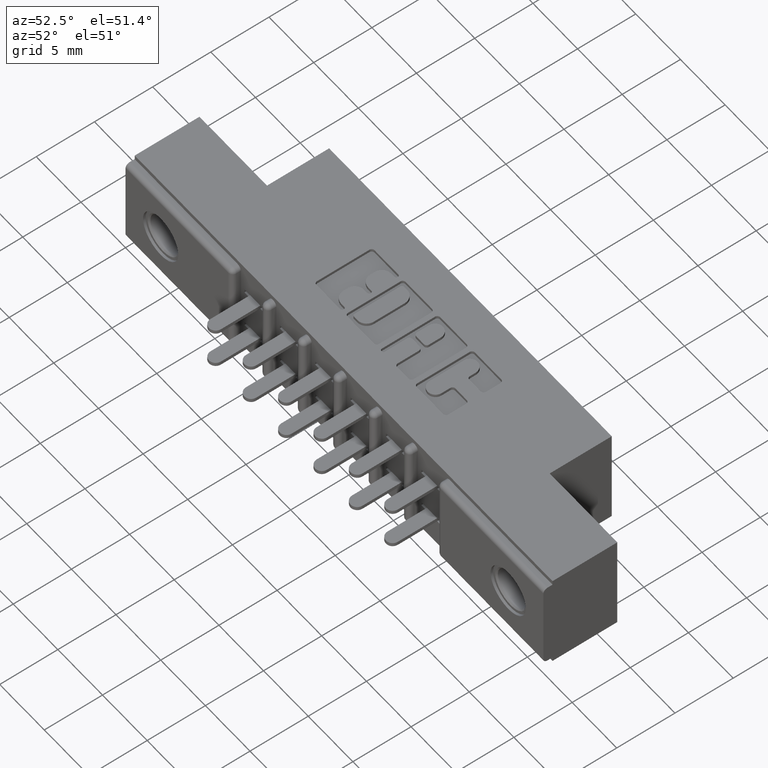
[diagram: clean part render]
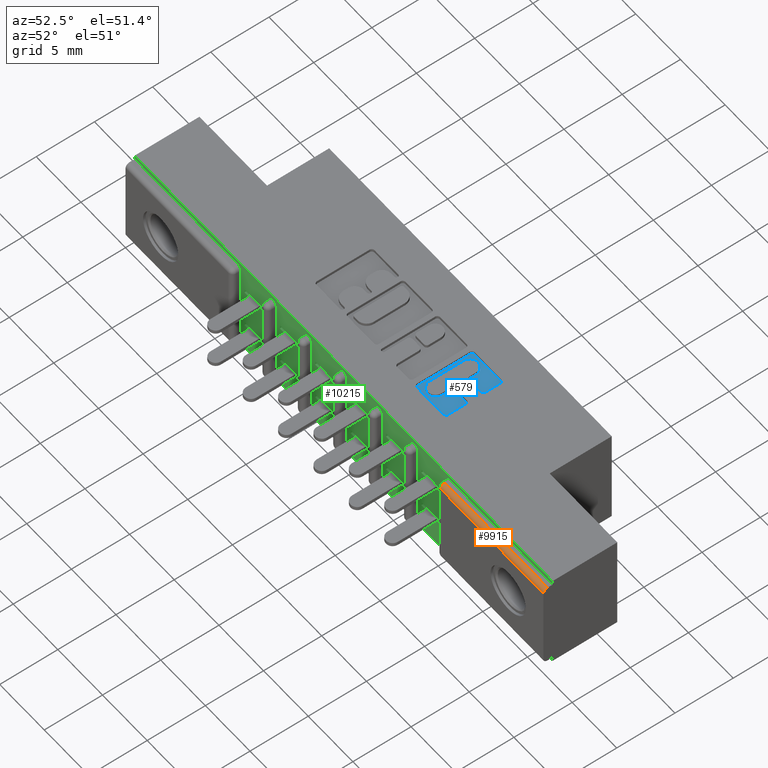
[diagram: same view with three faces highlighted in distinct colors, each labeled with its STEP entity id]
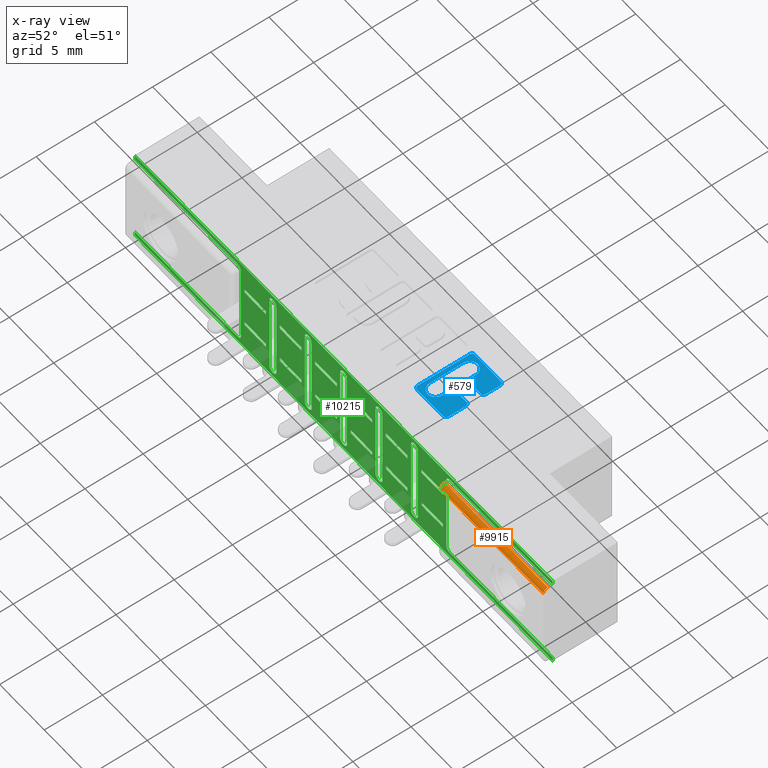
[diagram: x-ray of the same camera — body ghosted, the three highlighted faces saturated]
A machine part, auxiliary view with three faces highlighted in distinct colors.
The next image is the same camera in x-ray (body ghosted, the three faces saturated) — at least one of them is partly hidden behind the body in this view.
Their STEP definitions:

[orange] entity #9915 — the highlighted cylindrical surface (edge-blend (fillet) strip) has radius 0.381 mm, axis along (1, 0, 0).
#511 = VERTEX_POINT ( 'NONE', #2446 ) ;
#1000 = CIRCLE ( 'NONE', #6204, 0.01500000000000000300 ) ;
#1033 = CARTESIAN_POINT ( 'NONE',  ( 1.842000000000000100, 0.0000000000000000000, -0.02999999999999995400 ) ) ;
#1088 = DIRECTION ( 'NONE',  ( 1.000000000000000000, 0.0000000000000000000, 0.0000000000000000000 ) ) ;
#1401 = EDGE_CURVE ( 'NONE', #511, #5070, #1000, .T. ) ;
#1737 = FACE_OUTER_BOUND ( 'NONE', #9572, .T. ) ;
#1980 = VERTEX_POINT ( 'NONE', #2428 ) ;
#2077 = CARTESIAN_POINT ( 'NONE',  ( 1.389000000000000200, 0.0000000000000000000, -0.02999999999999995400 ) ) ;
#2213 = ORIENTED_EDGE ( 'NONE', *, *, #4142, .F. ) ;
#2310 = DIRECTION ( 'NONE',  ( 0.0000000000000000000, 0.0000000000000000000, -1.000000000000000000 ) ) ;
#2428 = CARTESIAN_POINT ( 'NONE',  ( 1.842000000000000100, 0.01499999999999999900, -0.01499999999999997700 ) ) ;
#2446 = CARTESIAN_POINT ( 'NONE',  ( 1.389000000000000200, 0.01499999999999999900, -0.01499999999999997700 ) ) ;
#2676 = DIRECTION ( 'NONE',  ( 1.000000000000000000, -0.0000000000000000000, -0.0000000000000000000 ) ) ;
#3146 = AXIS2_PLACEMENT_3D ( 'NONE', #6432, #2676, #9929 ) ;
#3457 = DIRECTION ( 'NONE',  ( 1.000000000000000000, 0.0000000000000000000, 0.0000000000000000000 ) ) ;
#3524 = CARTESIAN_POINT ( 'NONE',  ( 0.0000000000000000000, 0.0000000000000000000, -0.02999999999999995400 ) ) ;
#4067 = VECTOR ( 'NONE', #4480, 39.37007874015748100 ) ;
#4142 = EDGE_CURVE ( 'NONE', #511, #1980, #11788, .T. ) ;
#4219 = LINE ( 'NONE', #3524, #4067 ) ;
#4480 = DIRECTION ( 'NONE',  ( -1.000000000000000000, 0.0000000000000000000, 0.0000000000000000000 ) ) ;
#4789 = CARTESIAN_POINT ( 'NONE',  ( 1.389000000000000200, 0.01499999999999999900, -0.02999999999999995400 ) ) ;
#4901 = CARTESIAN_POINT ( 'NONE',  ( 1.842000000000000100, 0.01499999999999999900, -0.01499999999999997700 ) ) ;
#4987 = VERTEX_POINT ( 'NONE', #1033 ) ;
#5070 = VERTEX_POINT ( 'NONE', #2077 ) ;
#5347 = CARTESIAN_POINT ( 'NONE',  ( 0.0000000000000000000, 0.01499999999999999900, -0.02999999999999995400 ) ) ;
#5862 = EDGE_CURVE ( 'NONE', #1980, #4987, #5952, .T. ) ;
#5952 = CIRCLE ( 'NONE', #3146, 0.01499999999999999900 ) ;
#6204 = AXIS2_PLACEMENT_3D ( 'NONE', #4789, #1088, #6727 ) ;
#6385 = EDGE_CURVE ( 'NONE', #4987, #5070, #4219, .T. ) ;
#6432 = CARTESIAN_POINT ( 'NONE',  ( 1.842000000000000100, 0.01499999999999999900, -0.02999999999999995400 ) ) ;
#6727 = DIRECTION ( 'NONE',  ( 0.0000000000000000000, 0.0000000000000000000, -1.000000000000000000 ) ) ;
#6806 = ORIENTED_EDGE ( 'NONE', *, *, #1401, .T. ) ;
#6836 = DIRECTION ( 'NONE',  ( 1.000000000000000000, -0.0000000000000000000, -0.0000000000000000000 ) ) ;
#8465 = AXIS2_PLACEMENT_3D ( 'NONE', #5347, #3457, #2310 ) ;
#9014 = VECTOR ( 'NONE', #6836, 39.37007874015748100 ) ;
#9084 = CYLINDRICAL_SURFACE ( 'NONE', #8465, 0.01500000000000000300 ) ;
#9572 = EDGE_LOOP ( 'NONE', ( #2213, #6806, #10613, #10458 ) ) ;
#9915 = ADVANCED_FACE ( 'NONE', ( #1737 ), #9084, .T. ) ;
#9929 = DIRECTION ( 'NONE',  ( 0.0000000000000000000, 0.0000000000000000000, 1.000000000000000000 ) ) ;
#10458 = ORIENTED_EDGE ( 'NONE', *, *, #5862, .F. ) ;
#10613 = ORIENTED_EDGE ( 'NONE', *, *, #6385, .F. ) ;
#11788 = LINE ( 'NONE', #4901, #9014 ) ;

[blue] entity #579 — the highlighted planar face has unit normal (0, 0, 1).
#28 = CARTESIAN_POINT ( 'NONE',  ( 1.148478156973165900, 0.2842718973050482000, -0.01000000000000000000 ) ) ;
#62 = ORIENTED_EDGE ( 'NONE', *, *, #2036, .T. ) ;
#133 = LINE ( 'NONE', #7060, #9647 ) ;
#147 = EDGE_CURVE ( 'NONE', #820, #10725, #9236, .T. ) ;
#368 = DIRECTION ( 'NONE',  ( 0.0000000000000000000, 1.000000000000000000, -0.0000000000000000000 ) ) ;
#375 = AXIS2_PLACEMENT_3D ( 'NONE', #7199, #11065, #3553 ) ;
#392 = DIRECTION ( 'NONE',  ( 1.000000000000000000, 0.0000000000000000000, 0.0000000000000000000 ) ) ;
#439 = ORIENTED_EDGE ( 'NONE', *, *, #9902, .T. ) ;
#459 = ORIENTED_EDGE ( 'NONE', *, *, #2888, .T. ) ;
#492 = VERTEX_POINT ( 'NONE', #2045 ) ;
#569 = LINE ( 'NONE', #7654, #2289 ) ;
#579 = ADVANCED_FACE ( 'NONE', ( #6503 ), #6781, .T. ) ;
#587 = LINE ( 'NONE', #2515, #2017 ) ;
#639 = DIRECTION ( 'NONE',  ( -0.0000000000000000000, 0.0000000000000000000, 1.000000000000000000 ) ) ;
#732 = EDGE_LOOP ( 'NONE', ( #7253, #7718, #852, #7816, #6077, #7017, #6377, #10150, #9412, #1029, #459, #3015, #11939, #62, #439, #10289, #10297, #7161, #3891, #6273 ) ) ;
#820 = VERTEX_POINT ( 'NONE', #8582 ) ;
#852 = ORIENTED_EDGE ( 'NONE', *, *, #9071, .T. ) ;
#1029 = ORIENTED_EDGE ( 'NONE', *, *, #7004, .T. ) ;
#1109 = VECTOR ( 'NONE', #10878, 39.37007874015748100 ) ;
#1149 = AXIS2_PLACEMENT_3D ( 'NONE', #8423, #3709, #7454 ) ;
#1266 = CARTESIAN_POINT ( 'NONE',  ( 0.0000000000000000000, 0.0000000000000000000, -0.01000000000000000000 ) ) ;
#1434 = EDGE_CURVE ( 'NONE', #5183, #5429, #11538, .T. ) ;
#1435 = CARTESIAN_POINT ( 'NONE',  ( 1.207862961706153100, 0.2170345564089734300, -0.01000000000000000000 ) ) ;
#1554 = VERTEX_POINT ( 'NONE', #10476 ) ;
#1610 = CARTESIAN_POINT ( 'NONE',  ( 0.0000000000000000000, 0.2744562271012366300, -0.01000000000000000000 ) ) ;
#1695 = CIRCLE ( 'NONE', #4405, 0.009815670203811535700 ) ;
#1904 = CARTESIAN_POINT ( 'NONE',  ( 1.122221239177992200, 0.3036578459575325900, -0.01000000000000000000 ) ) ;
#1913 = AXIS2_PLACEMENT_3D ( 'NONE', #1435, #2273, #2349 ) ;
#1977 = AXIS2_PLACEMENT_3D ( 'NONE', #5867, #11437, #392 ) ;
#2017 = VECTOR ( 'NONE', #8957, 39.37007874015748100 ) ;
#2036 = EDGE_CURVE ( 'NONE', #7667, #5483, #9787, .T. ) ;
#2045 = CARTESIAN_POINT ( 'NONE',  ( 1.082222383097458700, 0.3338410318342131000, -0.01000000000000000000 ) ) ;
#2069 = DIRECTION ( 'NONE',  ( -1.000000000000000000, 0.0000000000000000000, 0.0000000000000000000 ) ) ;
#2273 = DIRECTION ( 'NONE',  ( -0.0000000000000000000, 0.0000000000000000000, 1.000000000000000000 ) ) ;
#2289 = VECTOR ( 'NONE', #2069, 39.37007874015748100 ) ;
#2349 = DIRECTION ( 'NONE',  ( 1.000000000000000000, 0.0000000000000000000, 0.0000000000000000000 ) ) ;
#2515 = CARTESIAN_POINT ( 'NONE',  ( 1.148478156973179000, 0.0000000000000000000, -0.01000000000000000000 ) ) ;
#2888 = EDGE_CURVE ( 'NONE', #9644, #9557, #10340, .T. ) ;
#2973 = VECTOR ( 'NONE', #6663, 39.37007874015748100 ) ;
#2977 = CARTESIAN_POINT ( 'NONE',  ( 1.158293827176977400, 0.2842718973050482000, -0.01000000000000000000 ) ) ;
#3015 = ORIENTED_EDGE ( 'NONE', *, *, #10244, .T. ) ;
#3090 = AXIS2_PLACEMENT_3D ( 'NONE', #5020, #639, #4224 ) ;
#3203 = CARTESIAN_POINT ( 'NONE',  ( 1.082222383097458700, 0.1571589681657929700, -0.01000000000000000000 ) ) ;
#3334 = VERTEX_POINT ( 'NONE', #3344 ) ;
#3344 = CARTESIAN_POINT ( 'NONE',  ( 1.217678631909972200, 0.3338410318341977800, -0.01000000000000000000 ) ) ;
#3441 = LINE ( 'NONE', #4291, #4165 ) ;
#3444 = DIRECTION ( 'NONE',  ( 0.0000000000000000000, -1.000000000000000000, 0.0000000000000000000 ) ) ;
#3553 = DIRECTION ( 'NONE',  ( 1.000000000000000000, 0.0000000000000000000, 0.0000000000000000000 ) ) ;
#3709 = DIRECTION ( 'NONE',  ( -0.0000000000000000000, 0.0000000000000000000, 1.000000000000000000 ) ) ;
#3891 = ORIENTED_EDGE ( 'NONE', *, *, #11066, .T. ) ;
#3900 = CARTESIAN_POINT ( 'NONE',  ( 1.148478156973179000, 0.2170345564089716800, -0.01000000000000000000 ) ) ;
#4052 = CARTESIAN_POINT ( 'NONE',  ( 1.217678631909940200, 0.1571589681657859800, -0.01000000000000000000 ) ) ;
#4165 = VECTOR ( 'NONE', #10852, 39.37007874015748100 ) ;
#4224 = DIRECTION ( 'NONE',  ( 1.000000000000000000, 0.0000000000000000000, 0.0000000000000000000 ) ) ;
#4291 = CARTESIAN_POINT ( 'NONE',  ( 1.148478156973165900, 0.0000000000000000000, -0.01000000000000000000 ) ) ;
#4405 = AXIS2_PLACEMENT_3D ( 'NONE', #2977, #10350, #10277 ) ;
#4453 = EDGE_CURVE ( 'NONE', #5850, #10006, #6563, .T. ) ;
#4496 = CARTESIAN_POINT ( 'NONE',  ( 1.158293827176966900, 0.2268502266127605200, -0.01000000000000000000 ) ) ;
#4543 = CARTESIAN_POINT ( 'NONE',  ( 1.148478156973179000, 0.1873421540424559900, -0.01000000000000000000 ) ) ;
#4814 = EDGE_CURVE ( 'NONE', #5183, #9370, #11768, .T. ) ;
#4933 = CARTESIAN_POINT ( 'NONE',  ( 1.092038053301299400, 0.3436567020380540400, -0.01000000000000000000 ) ) ;
#4974 = DIRECTION ( 'NONE',  ( -0.0000000000000000000, 0.0000000000000000000, 1.000000000000000000 ) ) ;
#4983 = CARTESIAN_POINT ( 'NONE',  ( 1.095964321382818300, 0.1873421540424559900, -0.01000000000000000000 ) ) ;
#5020 = CARTESIAN_POINT ( 'NONE',  ( 1.092038053301265200, 0.1571589681657929700, -0.01000000000000000000 ) ) ;
#5183 = VERTEX_POINT ( 'NONE', #4983 ) ;
#5185 = EDGE_CURVE ( 'NONE', #10006, #492, #5538, .T. ) ;
#5267 = AXIS2_PLACEMENT_3D ( 'NONE', #1266, #4974, #11587 ) ;
#5283 = AXIS2_PLACEMENT_3D ( 'NONE', #8950, #5301, #7981 ) ;
#5301 = DIRECTION ( 'NONE',  ( -0.0000000000000000000, 0.0000000000000000000, 1.000000000000000000 ) ) ;
#5429 = VERTEX_POINT ( 'NONE', #8353 ) ;
#5456 = CARTESIAN_POINT ( 'NONE',  ( 1.207862961706168200, 0.3436567020380540400, -0.01000000000000000000 ) ) ;
#5483 = VERTEX_POINT ( 'NONE', #3900 ) ;
#5538 = CIRCLE ( 'NONE', #1977, 0.009815670203840902800 ) ;
#5574 = CARTESIAN_POINT ( 'NONE',  ( 1.217678631909940200, 0.2170345564089734300, -0.01000000000000000000 ) ) ;
#5850 = VERTEX_POINT ( 'NONE', #5456 ) ;
#5857 = CARTESIAN_POINT ( 'NONE',  ( 1.158293827176977400, 0.2744562271012366300, -0.01000000000000000000 ) ) ;
#5867 = CARTESIAN_POINT ( 'NONE',  ( 1.092038053301299400, 0.3338410318342131000, -0.01000000000000000000 ) ) ;
#6031 = DIRECTION ( 'NONE',  ( -0.0000000000000000000, 0.0000000000000000000, 1.000000000000000000 ) ) ;
#6077 = ORIENTED_EDGE ( 'NONE', *, *, #4453, .T. ) ;
#6273 = ORIENTED_EDGE ( 'NONE', *, *, #11534, .T. ) ;
#6377 = ORIENTED_EDGE ( 'NONE', *, *, #7410, .T. ) ;
#6503 = FACE_OUTER_BOUND ( 'NONE', #732, .T. ) ;
#6523 = VERTEX_POINT ( 'NONE', #8247 ) ;
#6563 = LINE ( 'NONE', #9858, #9727 ) ;
#6591 = VECTOR ( 'NONE', #11860, 39.37007874015748100 ) ;
#6663 = DIRECTION ( 'NONE',  ( 0.0000000000000000000, 1.000000000000000000, -0.0000000000000000000 ) ) ;
#6781 = PLANE ( 'NONE',  #5267 ) ;
#7004 = EDGE_CURVE ( 'NONE', #10939, #9644, #11110, .T. ) ;
#7017 = ORIENTED_EDGE ( 'NONE', *, *, #5185, .T. ) ;
#7019 = VERTEX_POINT ( 'NONE', #28 ) ;
#7060 = CARTESIAN_POINT ( 'NONE',  ( 1.082222383097458700, 0.0000000000000000000, -0.01000000000000000000 ) ) ;
#7161 = ORIENTED_EDGE ( 'NONE', *, *, #10133, .F. ) ;
#7162 = DIRECTION ( 'NONE',  ( 1.000000000000000000, 0.0000000000000000000, 0.0000000000000000000 ) ) ;
#7199 = CARTESIAN_POINT ( 'NONE',  ( 1.207862961706134300, 0.1571589681657929700, -0.01000000000000000000 ) ) ;
#7204 = CIRCLE ( 'NONE', #1913, 0.009815670203787086500 ) ;
#7205 = VECTOR ( 'NONE', #368, 39.37007874015748100 ) ;
#7213 = DIRECTION ( 'NONE',  ( 0.0000000000000000000, 1.000000000000000000, -0.0000000000000000000 ) ) ;
#7243 = VERTEX_POINT ( 'NONE', #5857 ) ;
#7253 = ORIENTED_EDGE ( 'NONE', *, *, #8455, .T. ) ;
#7288 = CARTESIAN_POINT ( 'NONE',  ( 0.0000000000000000000, 0.1473432979619861700, -0.01000000000000000000 ) ) ;
#7410 = EDGE_CURVE ( 'NONE', #492, #7890, #133, .T. ) ;
#7454 = DIRECTION ( 'NONE',  ( 1.000000000000000000, 0.0000000000000000000, 0.0000000000000000000 ) ) ;
#7562 = CARTESIAN_POINT ( 'NONE',  ( 1.217678631909940200, 0.0000000000000000000, -0.01000000000000000000 ) ) ;
#7654 = CARTESIAN_POINT ( 'NONE',  ( 0.0000000000000000000, 0.2268502266127605200, -0.01000000000000000000 ) ) ;
#7667 = VERTEX_POINT ( 'NONE', #4496 ) ;
#7718 = ORIENTED_EDGE ( 'NONE', *, *, #147, .T. ) ;
#7816 = ORIENTED_EDGE ( 'NONE', *, *, #10821, .T. ) ;
#7866 = DIRECTION ( 'NONE',  ( 1.000000000000000000, 0.0000000000000000000, 0.0000000000000000000 ) ) ;
#7879 = CARTESIAN_POINT ( 'NONE',  ( 1.122221239177998700, 0.1873421540424559900, -0.01000000000000000000 ) ) ;
#7890 = VERTEX_POINT ( 'NONE', #3203 ) ;
#7918 = CARTESIAN_POINT ( 'NONE',  ( 1.217678631909972200, 0.2842718973050416500, -0.01000000000000000000 ) ) ;
#7920 = DIRECTION ( 'NONE',  ( -0.0000000000000000000, 0.0000000000000000000, 1.000000000000000000 ) ) ;
#7981 = DIRECTION ( 'NONE',  ( 1.000000000000000000, 0.0000000000000000000, 0.0000000000000000000 ) ) ;
#8247 = CARTESIAN_POINT ( 'NONE',  ( 1.092038053301265200, 0.1473432979619861700, -0.01000000000000000000 ) ) ;
#8296 = DIRECTION ( 'NONE',  ( 1.000000000000000000, 0.0000000000000000000, 0.0000000000000000000 ) ) ;
#8318 = LINE ( 'NONE', #7288, #1109 ) ;
#8342 = DIRECTION ( 'NONE',  ( -0.0000000000000000000, 0.0000000000000000000, 1.000000000000000000 ) ) ;
#8353 = CARTESIAN_POINT ( 'NONE',  ( 1.095964321382818300, 0.3036578459575325900, -0.01000000000000000000 ) ) ;
#8423 = CARTESIAN_POINT ( 'NONE',  ( 1.207862961706132100, 0.3338410318342139900, -0.01000000000000000000 ) ) ;
#8441 = EDGE_CURVE ( 'NONE', #6523, #10939, #8318, .T. ) ;
#8455 = EDGE_CURVE ( 'NONE', #7243, #820, #10337, .T. ) ;
#8582 = CARTESIAN_POINT ( 'NONE',  ( 1.207862961706167100, 0.2744562271012366300, -0.01000000000000000000 ) ) ;
#8799 = DIRECTION ( 'NONE',  ( -1.000000000000000000, 0.0000000000000000000, 0.0000000000000000000 ) ) ;
#8914 = EDGE_CURVE ( 'NONE', #7890, #6523, #10500, .T. ) ;
#8923 = AXIS2_PLACEMENT_3D ( 'NONE', #7879, #7920, #7162 ) ;
#8950 = CARTESIAN_POINT ( 'NONE',  ( 1.158293827176966900, 0.2170345564089725400, -0.01000000000000000000 ) ) ;
#8957 = DIRECTION ( 'NONE',  ( 0.0000000000000000000, -1.000000000000000000, 0.0000000000000000000 ) ) ;
#9031 = VERTEX_POINT ( 'NONE', #11598 ) ;
#9071 = EDGE_CURVE ( 'NONE', #10725, #3334, #10986, .T. ) ;
#9236 = CIRCLE ( 'NONE', #11614, 0.009815670203804980100 ) ;
#9370 = VERTEX_POINT ( 'NONE', #4543 ) ;
#9412 = ORIENTED_EDGE ( 'NONE', *, *, #8441, .T. ) ;
#9505 = CIRCLE ( 'NONE', #10178, 0.02625691779517367100 ) ;
#9557 = VERTEX_POINT ( 'NONE', #5574 ) ;
#9644 = VERTEX_POINT ( 'NONE', #4052 ) ;
#9647 = VECTOR ( 'NONE', #3444, 39.37007874015748100 ) ;
#9727 = VECTOR ( 'NONE', #8799, 39.37007874015748100 ) ;
#9787 = CIRCLE ( 'NONE', #5283, 0.009815670203788042300 ) ;
#9858 = CARTESIAN_POINT ( 'NONE',  ( 0.0000000000000000000, 0.3436567020380540400, -0.01000000000000000000 ) ) ;
#9902 = EDGE_CURVE ( 'NONE', #5483, #9370, #587, .T. ) ;
#10006 = VERTEX_POINT ( 'NONE', #4933 ) ;
#10038 = CARTESIAN_POINT ( 'NONE',  ( 1.217678631909972200, 0.0000000000000000000, -0.01000000000000000000 ) ) ;
#10133 = EDGE_CURVE ( 'NONE', #1554, #5429, #9505, .T. ) ;
#10150 = ORIENTED_EDGE ( 'NONE', *, *, #8914, .T. ) ;
#10178 = AXIS2_PLACEMENT_3D ( 'NONE', #1904, #8342, #8296 ) ;
#10244 = EDGE_CURVE ( 'NONE', #9557, #9031, #7204, .T. ) ;
#10277 = DIRECTION ( 'NONE',  ( 1.000000000000000000, 0.0000000000000000000, 0.0000000000000000000 ) ) ;
#10289 = ORIENTED_EDGE ( 'NONE', *, *, #4814, .F. ) ;
#10297 = ORIENTED_EDGE ( 'NONE', *, *, #1434, .T. ) ;
#10318 = CARTESIAN_POINT ( 'NONE',  ( 1.095964321382818300, 0.0000000000000000000, -0.01000000000000000000 ) ) ;
#10337 = LINE ( 'NONE', #1610, #6591 ) ;
#10340 = LINE ( 'NONE', #7562, #2973 ) ;
#10350 = DIRECTION ( 'NONE',  ( -0.0000000000000000000, 0.0000000000000000000, 1.000000000000000000 ) ) ;
#10403 = VECTOR ( 'NONE', #7213, 39.37007874015748100 ) ;
#10476 = CARTESIAN_POINT ( 'NONE',  ( 1.148478156973165900, 0.3036578454992628900, -0.01000000000000000000 ) ) ;
#10500 = CIRCLE ( 'NONE', #3090, 0.009815670203806754800 ) ;
#10725 = VERTEX_POINT ( 'NONE', #7918 ) ;
#10783 = EDGE_CURVE ( 'NONE', #9031, #7667, #569, .T. ) ;
#10821 = EDGE_CURVE ( 'NONE', #3334, #5850, #11828, .T. ) ;
#10852 = DIRECTION ( 'NONE',  ( 0.0000000000000000000, -1.000000000000000000, 0.0000000000000000000 ) ) ;
#10878 = DIRECTION ( 'NONE',  ( 1.000000000000000000, 0.0000000000000000000, 0.0000000000000000000 ) ) ;
#10939 = VERTEX_POINT ( 'NONE', #11540 ) ;
#10986 = LINE ( 'NONE', #10038, #10403 ) ;
#11065 = DIRECTION ( 'NONE',  ( -0.0000000000000000000, 0.0000000000000000000, 1.000000000000000000 ) ) ;
#11066 = EDGE_CURVE ( 'NONE', #1554, #7019, #3441, .T. ) ;
#11110 = CIRCLE ( 'NONE', #375, 0.009815670203806345400 ) ;
#11437 = DIRECTION ( 'NONE',  ( -0.0000000000000000000, 0.0000000000000000000, 1.000000000000000000 ) ) ;
#11534 = EDGE_CURVE ( 'NONE', #7019, #7243, #1695, .T. ) ;
#11538 = LINE ( 'NONE', #10318, #7205 ) ;
#11540 = CARTESIAN_POINT ( 'NONE',  ( 1.207862961706134300, 0.1473432979619861700, -0.01000000000000000000 ) ) ;
#11561 = CARTESIAN_POINT ( 'NONE',  ( 1.207862961706167100, 0.2842718973050416500, -0.01000000000000000000 ) ) ;
#11587 = DIRECTION ( 'NONE',  ( 1.000000000000000000, 0.0000000000000000000, 0.0000000000000000000 ) ) ;
#11598 = CARTESIAN_POINT ( 'NONE',  ( 1.207862961706156700, 0.2268502266127605200, -0.01000000000000000000 ) ) ;
#11614 = AXIS2_PLACEMENT_3D ( 'NONE', #11561, #6031, #7866 ) ;
#11768 = CIRCLE ( 'NONE', #8923, 0.02625691779518022500 ) ;
#11828 = CIRCLE ( 'NONE', #1149, 0.009815670203840084000 ) ;
#11860 = DIRECTION ( 'NONE',  ( 1.000000000000000000, 0.0000000000000000000, 0.0000000000000000000 ) ) ;
#11939 = ORIENTED_EDGE ( 'NONE', *, *, #10783, .T. ) ;

[green] entity #10215 — the highlighted planar face has unit normal (0, 1, 0).
#8 = FACE_BOUND ( 'NONE', #11831, .T. ) ;
#26 = LINE ( 'NONE', #5403, #2175 ) ;
#41 = VERTEX_POINT ( 'NONE', #9491 ) ;
#44 = VERTEX_POINT ( 'NONE', #2124 ) ;
#67 = VERTEX_POINT ( 'NONE', #10424 ) ;
#82 = DIRECTION ( 'NONE',  ( 0.0000000000000000000, -0.0000000000000000000, 1.000000000000000000 ) ) ;
#96 = EDGE_LOOP ( 'NONE', ( #6786, #4952, #8553, #3447 ) ) ;
#99 = CARTESIAN_POINT ( 'NONE',  ( 1.077000000000000600, 0.03100000000000000000, -0.3280000000000000100 ) ) ;
#104 = EDGE_CURVE ( 'NONE', #762, #2338, #6086, .T. ) ;
#135 = CARTESIAN_POINT ( 'NONE',  ( 1.046499999999998900, 0.03100000000000000000, -0.09500000000000072300 ) ) ;
#144 = VERTEX_POINT ( 'NONE', #2284 ) ;
#148 = CIRCLE ( 'NONE', #789, 0.01499999999999999900 ) ;
#151 = VECTOR ( 'NONE', #9069, 39.37007874015748100 ) ;
#158 = CARTESIAN_POINT ( 'NONE',  ( 1.389000000000000200, 0.03100000000000000000, -0.3130000000000000600 ) ) ;
#170 = EDGE_CURVE ( 'NONE', #11201, #1466, #8661, .T. ) ;
#204 = ORIENTED_EDGE ( 'NONE', *, *, #7483, .F. ) ;
#279 = LINE ( 'NONE', #5623, #2435 ) ;
#280 = EDGE_CURVE ( 'NONE', #7999, #9757, #6798, .T. ) ;
#289 = FACE_BOUND ( 'NONE', #2713, .T. ) ;
#295 = CARTESIAN_POINT ( 'NONE',  ( 1.107499999999998600, 0.03100000000000002400, -0.1080000000000006100 ) ) ;
#307 = LINE ( 'NONE', #7088, #609 ) ;
#314 = ORIENTED_EDGE ( 'NONE', *, *, #379, .T. ) ;
#349 = VECTOR ( 'NONE', #2929, 39.37007874015748100 ) ;
#360 = EDGE_CURVE ( 'NONE', #11201, #10872, #11415, .T. ) ;
#362 = ORIENTED_EDGE ( 'NONE', *, *, #5680, .F. ) ;
#379 = EDGE_CURVE ( 'NONE', #3838, #1342, #10840, .T. ) ;
#396 = AXIS2_PLACEMENT_3D ( 'NONE', #4438, #11787, #11001 ) ;
#400 = VECTOR ( 'NONE', #11160, 39.37007874015748100 ) ;
#415 = DIRECTION ( 'NONE',  ( 0.0000000000000000000, 0.0000000000000000000, 1.000000000000000000 ) ) ;
#463 = CARTESIAN_POINT ( 'NONE',  ( 1.842000000000000100, 0.03100000000000000000, -0.01499999999999997700 ) ) ;
#479 = VECTOR ( 'NONE', #4932, 39.37007874015748100 ) ;
#526 = LINE ( 'NONE', #7933, #4839 ) ;
#537 = VECTOR ( 'NONE', #10543, 39.37007874015748100 ) ;
#552 = CARTESIAN_POINT ( 'NONE',  ( 1.263499999999998700, 0.03100000000000002400, -0.05850000000000065600 ) ) ;
#573 = EDGE_CURVE ( 'NONE', #9244, #1942, #5780, .T. ) ;
#577 = VECTOR ( 'NONE', #6566, 39.37007874015748100 ) ;
#607 = CARTESIAN_POINT ( 'NONE',  ( 1.107499999999998600, 0.03100000000000002400, -0.05850000000000065600 ) ) ;
#609 = VECTOR ( 'NONE', #1576, 39.37007874015748100 ) ;
#646 = LINE ( 'NONE', #4030, #10152 ) ;
#650 = CARTESIAN_POINT ( 'NONE',  ( 0.7344999999999987100, 0.03100000000000002400, -0.2350000000000006300 ) ) ;
#654 = CARTESIAN_POINT ( 'NONE',  ( 0.6090000000000007600, 0.03100000000000000000, -0.3280000000000000100 ) ) ;
#660 = ORIENTED_EDGE ( 'NONE', *, *, #4703, .F. ) ;
#675 = CARTESIAN_POINT ( 'NONE',  ( 0.6240000000000003300, 0.03100000000000002400, -0.02999999999999995400 ) ) ;
#687 = AXIS2_PLACEMENT_3D ( 'NONE', #5400, #7251, #1730 ) ;
#699 = EDGE_CURVE ( 'NONE', #1579, #10126, #7365, .T. ) ;
#703 = AXIS2_PLACEMENT_3D ( 'NONE', #7287, #2568, #3515 ) ;
#705 = EDGE_CURVE ( 'NONE', #2608, #7688, #2029, .T. ) ;
#742 = VERTEX_POINT ( 'NONE', #5279 ) ;
#750 = EDGE_CURVE ( 'NONE', #9933, #5554, #4062, .T. ) ;
#753 = VERTEX_POINT ( 'NONE', #9998 ) ;
#762 = VERTEX_POINT ( 'NONE', #5579 ) ;
#767 = LINE ( 'NONE', #3077, #4230 ) ;
#770 = DIRECTION ( 'NONE',  ( 0.0000000000000000000, 0.0000000000000000000, 1.000000000000000000 ) ) ;
#776 = ORIENTED_EDGE ( 'NONE', *, *, #5563, .T. ) ;
#783 = VERTEX_POINT ( 'NONE', #8348 ) ;
#789 = AXIS2_PLACEMENT_3D ( 'NONE', #11641, #9890, #7064 ) ;
#836 = LINE ( 'NONE', #8122, #1978 ) ;
#841 = DIRECTION ( 'NONE',  ( 0.0000000000000000000, 1.000000000000000000, 0.0000000000000000000 ) ) ;
#842 = VECTOR ( 'NONE', #2179, 39.37007874015748100 ) ;
#862 = LINE ( 'NONE', #9437, #10362 ) ;
#914 = ORIENTED_EDGE ( 'NONE', *, *, #8764, .F. ) ;
#923 = CARTESIAN_POINT ( 'NONE',  ( 0.4680000000000003600, 0.03100000000000002400, -0.02999999999999995400 ) ) ;
#930 = ORIENTED_EDGE ( 'NONE', *, *, #10552, .F. ) ;
#937 = DIRECTION ( 'NONE',  ( -1.000000000000000000, 0.0000000000000000000, -3.594536833768821800E-016 ) ) ;
#951 = EDGE_CURVE ( 'NONE', #2620, #44, #6060, .T. ) ;
#999 = FACE_BOUND ( 'NONE', #7723, .T. ) ;
#1037 = CARTESIAN_POINT ( 'NONE',  ( 0.5940000000000003100, 0.03100000000000002400, -0.02999999999999995400 ) ) ;
#1043 = LINE ( 'NONE', #11549, #8102 ) ;
#1044 = CARTESIAN_POINT ( 'NONE',  ( 0.6394999999999954100, 0.03100000000000000000, -0.2480000000000006600 ) ) ;
#1071 = DIRECTION ( 'NONE',  ( 0.0000000000000000000, 0.0000000000000000000, 1.000000000000000000 ) ) ;
#1075 = AXIS2_PLACEMENT_3D ( 'NONE', #4092, #10531, #415 ) ;
#1090 = EDGE_CURVE ( 'NONE', #742, #783, #2606, .T. ) ;
#1106 = CIRCLE ( 'NONE', #703, 0.01499999999999999900 ) ;
#1130 = DIRECTION ( 'NONE',  ( 0.0000000000000000000, 0.0000000000000000000, 1.000000000000000000 ) ) ;
#1151 = EDGE_CURVE ( 'NONE', #2957, #10872, #4898, .T. ) ;
#1166 = CIRCLE ( 'NONE', #5395, 0.01499999999999999900 ) ;
#1171 = ORIENTED_EDGE ( 'NONE', *, *, #4361, .F. ) ;
#1177 = ORIENTED_EDGE ( 'NONE', *, *, #7789, .F. ) ;
#1186 = CARTESIAN_POINT ( 'NONE',  ( 1.842000000000000100, 0.03100000000000000000, -0.3430000000000000300 ) ) ;
#1193 = ORIENTED_EDGE ( 'NONE', *, *, #1786, .F. ) ;
#1196 = LINE ( 'NONE', #9235, #8690 ) ;
#1206 = DIRECTION ( 'NONE',  ( 0.0000000000000000000, 0.0000000000000000000, 1.000000000000000000 ) ) ;
#1230 = CARTESIAN_POINT ( 'NONE',  ( 1.374000000000000100, 0.03100000000000002400, -0.4680000000000015300 ) ) ;
#1268 = DIRECTION ( 'NONE',  ( 0.0000000000000000000, -0.0000000000000000000, 1.000000000000000000 ) ) ;
#1299 = AXIS2_PLACEMENT_3D ( 'NONE', #7018, #10773, #7973 ) ;
#1307 = VECTOR ( 'NONE', #1952, 39.37007874015748100 ) ;
#1317 = ORIENTED_EDGE ( 'NONE', *, *, #699, .T. ) ;
#1318 = EDGE_CURVE ( 'NONE', #144, #10893, #9950, .T. ) ;
#1339 = ORIENTED_EDGE ( 'NONE', *, *, #9373, .F. ) ;
#1342 = VERTEX_POINT ( 'NONE', #5758 ) ;
#1351 = DIRECTION ( 'NONE',  ( 0.0000000000000000000, -0.0000000000000000000, 1.000000000000000000 ) ) ;
#1356 = EDGE_LOOP ( 'NONE', ( #4956, #5920, #2743, #10205 ) ) ;
#1375 = CIRCLE ( 'NONE', #687, 0.01499999999999999900 ) ;
#1415 = VECTOR ( 'NONE', #1697, 39.37007874015748100 ) ;
#1423 = LINE ( 'NONE', #3411, #6333 ) ;
#1432 = DIRECTION ( 'NONE',  ( 0.0000000000000000000, 1.000000000000000000, 0.0000000000000000000 ) ) ;
#1462 = LINE ( 'NONE', #9576, #11859 ) ;
#1464 = VECTOR ( 'NONE', #9193, 39.37007874015748100 ) ;
#1466 = VERTEX_POINT ( 'NONE', #3269 ) ;
#1484 = CARTESIAN_POINT ( 'NONE',  ( 1.046499999999998900, 0.03100000000000000000, -0.2480000000000005000 ) ) ;
#1488 = CARTESIAN_POINT ( 'NONE',  ( 1.842000000000000100, 0.03100000000000000000, -0.3280000000000000100 ) ) ;
#1505 = CARTESIAN_POINT ( 'NONE',  ( 0.9514999999999955700, 0.03100000000000000000, -0.2480000000000006600 ) ) ;
#1509 = DIRECTION ( 'NONE',  ( 0.0000000000000000000, -0.0000000000000000000, 1.000000000000000000 ) ) ;
#1514 = ORIENTED_EDGE ( 'NONE', *, *, #3648, .F. ) ;
#1539 = CARTESIAN_POINT ( 'NONE',  ( 0.0000000000000000000, 0.03100000000000000000, -0.01499999999999997700 ) ) ;
#1566 = ORIENTED_EDGE ( 'NONE', *, *, #8921, .T. ) ;
#1571 = DIRECTION ( 'NONE',  ( 0.0000000000000000000, -0.0000000000000000000, 1.000000000000000000 ) ) ;
#1576 = DIRECTION ( 'NONE',  ( 1.000000000000000000, -0.0000000000000000000, 1.797268416884322500E-015 ) ) ;
#1579 = VERTEX_POINT ( 'NONE', #654 ) ;
#1609 = VECTOR ( 'NONE', #82, 39.37007874015748100 ) ;
#1633 = LINE ( 'NONE', #11385, #1768 ) ;
#1636 = CARTESIAN_POINT ( 'NONE',  ( 0.7800000000000001400, 0.03100000000000002400, -0.4680000000000015300 ) ) ;
#1641 = CARTESIAN_POINT ( 'NONE',  ( 1.263499999999995400, 0.03100000000000000000, -0.2480000000000006600 ) ) ;
#1645 = DIRECTION ( 'NONE',  ( 0.0000000000000000000, 0.0000000000000000000, 1.000000000000000000 ) ) ;
#1658 = ORIENTED_EDGE ( 'NONE', *, *, #6243, .T. ) ;
#1669 = CARTESIAN_POINT ( 'NONE',  ( 0.5784999999999987900, 0.03100000000000000000, -0.2480000000000005000 ) ) ;
#1697 = DIRECTION ( 'NONE',  ( -1.000000000000000000, -0.0000000000000000000, -0.0000000000000000000 ) ) ;
#1727 = FACE_BOUND ( 'NONE', #3512, .T. ) ;
#1730 = DIRECTION ( 'NONE',  ( 0.0000000000000000000, 0.0000000000000000000, 1.000000000000000000 ) ) ;
#1742 = ORIENTED_EDGE ( 'NONE', *, *, #8283, .T. ) ;
#1768 = VECTOR ( 'NONE', #5295, 39.37007874015748100 ) ;
#1786 = EDGE_CURVE ( 'NONE', #7459, #3032, #279, .T. ) ;
#1789 = CARTESIAN_POINT ( 'NONE',  ( 0.5940000000000003100, 0.03100000000000002400, -0.3130000000000000600 ) ) ;
#1807 = AXIS2_PLACEMENT_3D ( 'NONE', #5768, #3972, #10563 ) ;
#1831 = CARTESIAN_POINT ( 'NONE',  ( 0.4530000000000009000, 0.03100000000000000000, -0.01499999999999997700 ) ) ;
#1843 = LINE ( 'NONE', #1044, #7887 ) ;
#1888 = EDGE_CURVE ( 'NONE', #4267, #3965, #4596, .T. ) ;
#1906 = EDGE_LOOP ( 'NONE', ( #8407, #6491, #314, #2085, #4533, #10656 ) ) ;
#1942 = VERTEX_POINT ( 'NONE', #6990 ) ;
#1952 = DIRECTION ( 'NONE',  ( -1.000000000000000000, -0.0000000000000000000, 1.078361050130647000E-015 ) ) ;
#1958 = EDGE_LOOP ( 'NONE', ( #8109, #8418, #5790, #4232 ) ) ;
#1964 = CARTESIAN_POINT ( 'NONE',  ( 0.9514999999999955700, 0.03100000000000000000, -0.2480000000000006600 ) ) ;
#1978 = VECTOR ( 'NONE', #10033, 39.37007874015748100 ) ;
#1997 = EDGE_CURVE ( 'NONE', #11225, #8967, #4310, .T. ) ;
#1999 = CARTESIAN_POINT ( 'NONE',  ( 0.5784999999999985700, 0.03100000000000002400, -0.05850000000000065600 ) ) ;
#2000 = ORIENTED_EDGE ( 'NONE', *, *, #7552, .T. ) ;
#2006 = FACE_BOUND ( 'NONE', #1906, .T. ) ;
#2026 = VERTEX_POINT ( 'NONE', #3375 ) ;
#2029 = CIRCLE ( 'NONE', #8344, 0.01499999999999999900 ) ;
#2040 = EDGE_CURVE ( 'NONE', #8422, #4099, #6037, .T. ) ;
#2050 = CARTESIAN_POINT ( 'NONE',  ( 1.107500000000000200, 0.03100000000000000000, -0.09500000000000062600 ) ) ;
#2057 = AXIS2_PLACEMENT_3D ( 'NONE', #7441, #4673, #11155 ) ;
#2060 = CARTESIAN_POINT ( 'NONE',  ( 0.6240000000000001100, 0.03100000000000002400, -0.4680000000000015300 ) ) ;
#2085 = ORIENTED_EDGE ( 'NONE', *, *, #5609, .T. ) ;
#2090 = EDGE_LOOP ( 'NONE', ( #9539, #2907, #10398, #7738, #11697, #10736 ) ) ;
#2094 = DIRECTION ( 'NONE',  ( 0.0000000000000000000, 1.000000000000000000, 0.0000000000000000000 ) ) ;
#2124 = CARTESIAN_POINT ( 'NONE',  ( 1.248000000000000000, 0.03100000000000002400, -0.3130000000000000600 ) ) ;
#2175 = VECTOR ( 'NONE', #6334, 39.37007874015748100 ) ;
#2176 = VECTOR ( 'NONE', #6902, 39.37007874015748100 ) ;
#2179 = DIRECTION ( 'NONE',  ( -6.030569522437646000E-016, 0.0000000000000000000, -1.000000000000000000 ) ) ;
#2188 = VECTOR ( 'NONE', #11883, 39.37007874015748100 ) ;
#2206 = EDGE_CURVE ( 'NONE', #11322, #3838, #6169, .T. ) ;
#2236 = EDGE_CURVE ( 'NONE', #11934, #9428, #5592, .T. ) ;
#2246 = VECTOR ( 'NONE', #3906, 39.37007874015748100 ) ;
#2250 = LINE ( 'NONE', #607, #9462 ) ;
#2256 = LINE ( 'NONE', #9033, #8013 ) ;
#2258 = ORIENTED_EDGE ( 'NONE', *, *, #9065, .T. ) ;
#2263 = ORIENTED_EDGE ( 'NONE', *, *, #1151, .F. ) ;
#2279 = DIRECTION ( 'NONE',  ( 0.0000000000000000000, 0.0000000000000000000, 1.000000000000000000 ) ) ;
#2284 = CARTESIAN_POINT ( 'NONE',  ( 1.263499999999998700, 0.03100000000000002400, -0.1080000000000006100 ) ) ;
#2301 = VERTEX_POINT ( 'NONE', #6257 ) ;
#2304 = VECTOR ( 'NONE', #8113, 39.37007874015748100 ) ;
#2306 = CARTESIAN_POINT ( 'NONE',  ( 0.9514999999999985700, 0.03100000000000002400, -0.05850000000000065600 ) ) ;
#2319 = CARTESIAN_POINT ( 'NONE',  ( 0.7954999999999986500, 0.03100000000000002400, -0.1080000000000006100 ) ) ;
#2326 = EDGE_CURVE ( 'NONE', #11225, #67, #1843, .T. ) ;
#2327 = VERTEX_POINT ( 'NONE', #9064 ) ;
#2335 = VERTEX_POINT ( 'NONE', #10846 ) ;
#2338 = VERTEX_POINT ( 'NONE', #3527 ) ;
#2347 = AXIS2_PLACEMENT_3D ( 'NONE', #3290, #4223, #2279 ) ;
#2410 = ORIENTED_EDGE ( 'NONE', *, *, #750, .T. ) ;
#2433 = CIRCLE ( 'NONE', #9238, 0.01499999999999999900 ) ;
#2435 = VECTOR ( 'NONE', #7396, 39.37007874015748100 ) ;
#2439 = CARTESIAN_POINT ( 'NONE',  ( 0.9210000000000002600, 0.03100000000000000000, -0.3130000000000000600 ) ) ;
#2464 = EDGE_LOOP ( 'NONE', ( #9440, #10642, #10972, #9327 ) ) ;
#2526 = ORIENTED_EDGE ( 'NONE', *, *, #1888, .T. ) ;
#2537 = CARTESIAN_POINT ( 'NONE',  ( 0.9210000000000004800, 0.03100000000000000000, -0.01499999999999997700 ) ) ;
#2554 = VERTEX_POINT ( 'NONE', #5215 ) ;
#2568 = DIRECTION ( 'NONE',  ( 0.0000000000000000000, 1.000000000000000000, 0.0000000000000000000 ) ) ;
#2585 = CARTESIAN_POINT ( 'NONE',  ( 1.842000000000000100, 0.03100000000000000000, 0.0000000000000000000 ) ) ;
#2606 = LINE ( 'NONE', #9921, #151 ) ;
#2608 = VERTEX_POINT ( 'NONE', #11094 ) ;
#2619 = ORIENTED_EDGE ( 'NONE', *, *, #2868, .F. ) ;
#2620 = VERTEX_POINT ( 'NONE', #2642 ) ;
#2642 = CARTESIAN_POINT ( 'NONE',  ( 1.248000000000000200, 0.03100000000000002400, -0.02999999999999995400 ) ) ;
#2662 = VECTOR ( 'NONE', #4111, 39.37007874015748100 ) ;
#2670 = EDGE_CURVE ( 'NONE', #6889, #5022, #2256, .T. ) ;
#2692 = CIRCLE ( 'NONE', #10381, 0.01499999999999999900 ) ;
#2713 = EDGE_LOOP ( 'NONE', ( #6959, #930, #5707, #1514 ) ) ;
#2715 = LINE ( 'NONE', #1230, #7892 ) ;
#2720 = VERTEX_POINT ( 'NONE', #1641 ) ;
#2722 = CARTESIAN_POINT ( 'NONE',  ( 1.842000000000000100, 0.03100000000000000000, -0.01499999999999997700 ) ) ;
#2723 = LINE ( 'NONE', #4369, #8484 ) ;
#2743 = ORIENTED_EDGE ( 'NONE', *, *, #5844, .T. ) ;
#2762 = VECTOR ( 'NONE', #2969, 39.37007874015748100 ) ;
#2786 = VERTEX_POINT ( 'NONE', #99 ) ;
#2814 = CARTESIAN_POINT ( 'NONE',  ( 0.9515000000000002300, 0.03100000000000000000, -0.2350000000000006800 ) ) ;
#2825 = ORIENTED_EDGE ( 'NONE', *, *, #8378, .T. ) ;
#2839 = VERTEX_POINT ( 'NONE', #1831 ) ;
#2868 = EDGE_CURVE ( 'NONE', #2301, #742, #8458, .T. ) ;
#2907 = ORIENTED_EDGE ( 'NONE', *, *, #9080, .T. ) ;
#2919 = CARTESIAN_POINT ( 'NONE',  ( 0.4834999999999993700, 0.03100000000000002400, -0.2350000000000006800 ) ) ;
#2929 = DIRECTION ( 'NONE',  ( 0.0000000000000000000, -0.0000000000000000000, 1.000000000000000000 ) ) ;
#2957 = VERTEX_POINT ( 'NONE', #135 ) ;
#2959 = ORIENTED_EDGE ( 'NONE', *, *, #9329, .F. ) ;
#2960 = EDGE_CURVE ( 'NONE', #2839, #9757, #9163, .T. ) ;
#2969 = DIRECTION ( 'NONE',  ( 1.000000000000000000, -0.0000000000000000000, 1.797268416884410900E-016 ) ) ;
#2986 = VECTOR ( 'NONE', #10293, 39.37007874015748100 ) ;
#2989 = ORIENTED_EDGE ( 'NONE', *, *, #10789, .T. ) ;
#3007 = DIRECTION ( 'NONE',  ( 0.0000000000000000000, 0.0000000000000000000, 1.000000000000000000 ) ) ;
#3032 = VERTEX_POINT ( 'NONE', #10609 ) ;
#3038 = ORIENTED_EDGE ( 'NONE', *, *, #3528, .T. ) ;
#3043 = CARTESIAN_POINT ( 'NONE',  ( 1.107499999999999300, 0.03100000000000002400, -0.2350000000000006800 ) ) ;
#3046 = LINE ( 'NONE', #3996, #7639 ) ;
#3049 = CARTESIAN_POINT ( 'NONE',  ( 1.107500000000000200, 0.03100000000000000000, -0.09500000000000062600 ) ) ;
#3077 = CARTESIAN_POINT ( 'NONE',  ( 1.263499999999998700, 0.03100000000000002400, -0.05850000000000065600 ) ) ;
#3137 = EDGE_CURVE ( 'NONE', #11300, #7999, #3877, .T. ) ;
#3163 = DIRECTION ( 'NONE',  ( 0.0000000000000000000, 0.0000000000000000000, 1.000000000000000000 ) ) ;
#3169 = EDGE_CURVE ( 'NONE', #9138, #7701, #4009, .T. ) ;
#3173 = FACE_OUTER_BOUND ( 'NONE', #3799, .T. ) ;
#3178 = CARTESIAN_POINT ( 'NONE',  ( 1.092000000000000300, 0.03100000000000002400, -0.02999999999999995400 ) ) ;
#3192 = ORIENTED_EDGE ( 'NONE', *, *, #9360, .T. ) ;
#3193 = LINE ( 'NONE', #10308, #6656 ) ;
#3263 = CARTESIAN_POINT ( 'NONE',  ( 0.7344999999999987100, 0.03100000000000002400, -0.1080000000000006000 ) ) ;
#3269 = CARTESIAN_POINT ( 'NONE',  ( 1.046499999999998400, 0.03100000000000002400, -0.1080000000000006000 ) ) ;
#3274 = CIRCLE ( 'NONE', #6057, 0.01499999999999999900 ) ;
#3288 = LINE ( 'NONE', #2060, #842 ) ;
#3290 = CARTESIAN_POINT ( 'NONE',  ( 0.7650000000000001200, 0.03100000000000000000, -0.3130000000000000600 ) ) ;
#3320 = CARTESIAN_POINT ( 'NONE',  ( 0.7344999999999987100, 0.03100000000000000000, -0.09500000000000072300 ) ) ;
#3331 = VERTEX_POINT ( 'NONE', #6683 ) ;
#3347 = EDGE_LOOP ( 'NONE', ( #8085, #4881, #3886, #9269, #1658, #1742 ) ) ;
#3351 = LINE ( 'NONE', #5796, #2762 ) ;
#3373 = VERTEX_POINT ( 'NONE', #3263 ) ;
#3375 = CARTESIAN_POINT ( 'NONE',  ( 1.092000000000000100, 0.03100000000000002400, -0.3130000000000000600 ) ) ;
#3385 = CARTESIAN_POINT ( 'NONE',  ( 0.9515000000000002300, 0.03100000000000000000, -0.1080000000000006100 ) ) ;
#3403 = VERTEX_POINT ( 'NONE', #3178 ) ;
#3411 = CARTESIAN_POINT ( 'NONE',  ( 0.8904999999999986300, 0.03100000000000002400, -0.05850000000000065600 ) ) ;
#3445 = CARTESIAN_POINT ( 'NONE',  ( 1.202499999999998800, 0.03100000000000000000, -0.2480000000000005000 ) ) ;
#3447 = ORIENTED_EDGE ( 'NONE', *, *, #5171, .F. ) ;
#3467 = FACE_BOUND ( 'NONE', #11717, .T. ) ;
#3481 = VECTOR ( 'NONE', #7315, 39.37007874015748100 ) ;
#3486 = EDGE_LOOP ( 'NONE', ( #1566, #4798, #8822, #2959 ) ) ;
#3512 = EDGE_LOOP ( 'NONE', ( #776, #8248, #660, #9600 ) ) ;
#3515 = DIRECTION ( 'NONE',  ( 0.0000000000000000000, 0.0000000000000000000, 1.000000000000000000 ) ) ;
#3527 = CARTESIAN_POINT ( 'NONE',  ( 0.0000000000000000000, 0.03100000000000000000, -0.3280000000000000100 ) ) ;
#3528 = EDGE_CURVE ( 'NONE', #6542, #8989, #3274, .T. ) ;
#3572 = ORIENTED_EDGE ( 'NONE', *, *, #170, .F. ) ;
#3582 = ORIENTED_EDGE ( 'NONE', *, *, #2960, .F. ) ;
#3593 = ORIENTED_EDGE ( 'NONE', *, *, #11370, .F. ) ;
#3613 = CARTESIAN_POINT ( 'NONE',  ( 0.9514999999999985700, 0.03100000000000002400, -0.1080000000000006100 ) ) ;
#3618 = DIRECTION ( 'NONE',  ( 0.0000000000000000000, 0.0000000000000000000, 1.000000000000000000 ) ) ;
#3642 = ORIENTED_EDGE ( 'NONE', *, *, #1997, .T. ) ;
#3648 = EDGE_CURVE ( 'NONE', #9398, #5022, #6447, .T. ) ;
#3729 = EDGE_CURVE ( 'NONE', #7701, #11322, #2692, .T. ) ;
#3731 = LINE ( 'NONE', #5704, #2246 ) ;
#3756 = DIRECTION ( 'NONE',  ( 0.0000000000000000000, -0.0000000000000000000, 1.000000000000000000 ) ) ;
#3765 = CARTESIAN_POINT ( 'NONE',  ( 0.7800000000000002500, 0.03100000000000002400, -0.3130000000000000600 ) ) ;
#3766 = VERTEX_POINT ( 'NONE', #295 ) ;
#3773 = LINE ( 'NONE', #4473, #8350 ) ;
#3777 = VECTOR ( 'NONE', #1645, 39.37007874015748100 ) ;
#3799 = EDGE_LOOP ( 'NONE', ( #9341, #10691, #8777, #3192, #10159, #204, #4447, #6313, #3582, #5913, #8899, #2258, #6869, #2000, #8401, #2619 ) ) ;
#3808 = CARTESIAN_POINT ( 'NONE',  ( 1.107499999999995500, 0.03100000000000000000, -0.2480000000000006600 ) ) ;
#3809 = VERTEX_POINT ( 'NONE', #9759 ) ;
#3813 = LINE ( 'NONE', #5940, #479 ) ;
#3838 = VERTEX_POINT ( 'NONE', #5121 ) ;
#3877 = LINE ( 'NONE', #9170, #1415 ) ;
#3884 = EDGE_CURVE ( 'NONE', #10781, #8157, #526, .T. ) ;
#3886 = ORIENTED_EDGE ( 'NONE', *, *, #5682, .T. ) ;
#3906 = DIRECTION ( 'NONE',  ( 0.0000000000000000000, -0.0000000000000000000, 1.000000000000000000 ) ) ;
#3936 = DIRECTION ( 'NONE',  ( 1.000000000000000000, 0.0000000000000000000, 1.797268416884322500E-015 ) ) ;
#3965 = VERTEX_POINT ( 'NONE', #5331 ) ;
#3972 = DIRECTION ( 'NONE',  ( 0.0000000000000000000, 1.000000000000000000, 0.0000000000000000000 ) ) ;
#3980 = CARTESIAN_POINT ( 'NONE',  ( 0.9060000000000002500, 0.03100000000000002400, -0.02999999999999995400 ) ) ;
#3996 = CARTESIAN_POINT ( 'NONE',  ( 0.6395000000000002900, 0.03100000000000000000, -0.09500000000000062600 ) ) ;
#4009 = LINE ( 'NONE', #4868, #10780 ) ;
#4011 = VECTOR ( 'NONE', #9253, 39.37007874015748100 ) ;
#4018 = DIRECTION ( 'NONE',  ( -1.000000000000000000, 0.0000000000000000000, -3.594536833768821800E-016 ) ) ;
#4020 = DIRECTION ( 'NONE',  ( 0.0000000000000000000, 1.000000000000000000, 0.0000000000000000000 ) ) ;
#4030 = CARTESIAN_POINT ( 'NONE',  ( 0.7955000000000002100, 0.03100000000000000000, -0.1080000000000006100 ) ) ;
#4062 = LINE ( 'NONE', #5423, #3481 ) ;
#4092 = CARTESIAN_POINT ( 'NONE',  ( 0.6089999999999999900, 0.03100000000000000000, -0.3130000000000000600 ) ) ;
#4099 = VERTEX_POINT ( 'NONE', #3765 ) ;
#4108 = CARTESIAN_POINT ( 'NONE',  ( 0.6394999999999987400, 0.03100000000000002400, -0.05850000000000065600 ) ) ;
#4111 = DIRECTION ( 'NONE',  ( -6.030569522437646000E-016, 0.0000000000000000000, -1.000000000000000000 ) ) ;
#4169 = VERTEX_POINT ( 'NONE', #2319 ) ;
#4189 = FACE_BOUND ( 'NONE', #1958, .T. ) ;
#4223 = DIRECTION ( 'NONE',  ( 0.0000000000000000000, 1.000000000000000000, 0.0000000000000000000 ) ) ;
#4230 = VECTOR ( 'NONE', #1268, 39.37007874015748100 ) ;
#4232 = ORIENTED_EDGE ( 'NONE', *, *, #10281, .F. ) ;
#4267 = VERTEX_POINT ( 'NONE', #6071 ) ;
#4310 = LINE ( 'NONE', #8872, #8902 ) ;
#4331 = FACE_BOUND ( 'NONE', #5140, .T. ) ;
#4339 = CARTESIAN_POINT ( 'NONE',  ( 0.6394999999999994000, 0.03100000000000002400, -0.2350000000000006800 ) ) ;
#4349 = VERTEX_POINT ( 'NONE', #9343 ) ;
#4361 = EDGE_CURVE ( 'NONE', #3032, #5554, #6850, .T. ) ;
#4363 = VERTEX_POINT ( 'NONE', #6467 ) ;
#4369 = CARTESIAN_POINT ( 'NONE',  ( 1.842000000000000100, 0.03100000000000000000, 0.0000000000000000000 ) ) ;
#4385 = LINE ( 'NONE', #10464, #2662 ) ;
#4397 = CARTESIAN_POINT ( 'NONE',  ( 0.7954999999999955400, 0.03100000000000000000, -0.2480000000000006600 ) ) ;
#4414 = ORIENTED_EDGE ( 'NONE', *, *, #7095, .F. ) ;
#4425 = CARTESIAN_POINT ( 'NONE',  ( 1.218000000000000200, 0.03100000000000002400, -0.4680000000000015300 ) ) ;
#4436 = CARTESIAN_POINT ( 'NONE',  ( 1.077000000000000200, 0.03100000000000000000, -0.3130000000000000600 ) ) ;
#4438 = CARTESIAN_POINT ( 'NONE',  ( 1.233000000000000300, 0.03100000000000002400, -0.02999999999999995400 ) ) ;
#4447 = ORIENTED_EDGE ( 'NONE', *, *, #3137, .T. ) ;
#4449 = DIRECTION ( 'NONE',  ( 0.0000000000000000000, 1.000000000000000000, 0.0000000000000000000 ) ) ;
#4450 = EDGE_CURVE ( 'NONE', #7975, #9138, #11473, .T. ) ;
#4456 = VECTOR ( 'NONE', #6710, 39.37007874015748100 ) ;
#4473 = CARTESIAN_POINT ( 'NONE',  ( 0.7955000000000002100, 0.03100000000000000000, -0.2350000000000006800 ) ) ;
#4533 = ORIENTED_EDGE ( 'NONE', *, *, #4450, .T. ) ;
#4596 = CIRCLE ( 'NONE', #2347, 0.01500000000000001200 ) ;
#4615 = FACE_BOUND ( 'NONE', #3486, .T. ) ;
#4637 = CIRCLE ( 'NONE', #396, 0.01499999999999999900 ) ;
#4673 = DIRECTION ( 'NONE',  ( 0.0000000000000000000, 1.000000000000000000, 0.0000000000000000000 ) ) ;
#4683 = EDGE_LOOP ( 'NONE', ( #6634, #8526, #3642, #362 ) ) ;
#4695 = CARTESIAN_POINT ( 'NONE',  ( 1.107500000000000200, 0.03100000000000000000, -0.2350000000000006800 ) ) ;
#4703 = EDGE_CURVE ( 'NONE', #10893, #5277, #7983, .T. ) ;
#4721 = LINE ( 'NONE', #2814, #4011 ) ;
#4727 = LINE ( 'NONE', #4108, #537 ) ;
#4769 = DIRECTION ( 'NONE',  ( -0.0000000000000000000, -0.0000000000000000000, -1.000000000000000000 ) ) ;
#4798 = ORIENTED_EDGE ( 'NONE', *, *, #9310, .F. ) ;
#4839 = VECTOR ( 'NONE', #8858, 39.37007874015748100 ) ;
#4868 = CARTESIAN_POINT ( 'NONE',  ( 0.9060000000000002500, 0.03100000000000002400, -0.4680000000000015300 ) ) ;
#4871 = EDGE_CURVE ( 'NONE', #9177, #6542, #1375, .T. ) ;
#4881 = ORIENTED_EDGE ( 'NONE', *, *, #11954, .T. ) ;
#4897 = FACE_BOUND ( 'NONE', #8121, .T. ) ;
#4898 = LINE ( 'NONE', #5288, #6928 ) ;
#4917 = CARTESIAN_POINT ( 'NONE',  ( 0.8904999999999986300, 0.03100000000000002400, -0.1080000000000006000 ) ) ;
#4928 = CARTESIAN_POINT ( 'NONE',  ( 0.9514999999999985700, 0.03100000000000002400, -0.05850000000000065600 ) ) ;
#4932 = DIRECTION ( 'NONE',  ( 0.0000000000000000000, 0.0000000000000000000, 1.000000000000000000 ) ) ;
#4952 = ORIENTED_EDGE ( 'NONE', *, *, #3884, .F. ) ;
#4956 = ORIENTED_EDGE ( 'NONE', *, *, #8781, .F. ) ;
#4960 = ORIENTED_EDGE ( 'NONE', *, *, #2236, .F. ) ;
#4979 = EDGE_CURVE ( 'NONE', #3373, #8052, #6117, .T. ) ;
#5010 = DIRECTION ( 'NONE',  ( 0.0000000000000000000, 1.000000000000000000, 0.0000000000000000000 ) ) ;
#5022 = VERTEX_POINT ( 'NONE', #3043 ) ;
#5081 = EDGE_CURVE ( 'NONE', #8602, #9592, #4385, .T. ) ;
#5097 = CARTESIAN_POINT ( 'NONE',  ( 0.4530000000000004000, 0.03100000000000002400, -0.02999999999999995400 ) ) ;
#5121 = CARTESIAN_POINT ( 'NONE',  ( 0.9360000000000003900, 0.03100000000000002400, -0.02999999999999995400 ) ) ;
#5137 = CARTESIAN_POINT ( 'NONE',  ( 1.358499999999998700, 0.03100000000000000000, -0.09500000000000072300 ) ) ;
#5140 = EDGE_LOOP ( 'NONE', ( #6897, #1339, #4960, #8259 ) ) ;
#5166 = CARTESIAN_POINT ( 'NONE',  ( 1.263500000000000100, 0.03100000000000000000, -0.2350000000000006800 ) ) ;
#5171 = EDGE_CURVE ( 'NONE', #4169, #9618, #646, .T. ) ;
#5215 = CARTESIAN_POINT ( 'NONE',  ( 1.263500000000000100, 0.03100000000000000000, -0.09500000000000062600 ) ) ;
#5270 = VERTEX_POINT ( 'NONE', #10064 ) ;
#5277 = VERTEX_POINT ( 'NONE', #5137 ) ;
#5279 = CARTESIAN_POINT ( 'NONE',  ( 1.842000000000000100, 0.03100000000000000000, -0.3430000000000000300 ) ) ;
#5287 = EDGE_LOOP ( 'NONE', ( #5588, #2263, #3593, #3572 ) ) ;
#5288 = CARTESIAN_POINT ( 'NONE',  ( 0.9515000000000002300, 0.03100000000000000000, -0.09500000000000062600 ) ) ;
#5295 = DIRECTION ( 'NONE',  ( -6.030569522437646000E-016, 0.0000000000000000000, -1.000000000000000000 ) ) ;
#5299 = CIRCLE ( 'NONE', #11430, 0.01500000000000001200 ) ;
#5323 = EDGE_CURVE ( 'NONE', #2839, #8602, #5962, .T. ) ;
#5331 = CARTESIAN_POINT ( 'NONE',  ( 0.7500000000000002200, 0.03100000000000002400, -0.3130000000000000600 ) ) ;
#5362 = DIRECTION ( 'NONE',  ( 0.0000000000000000000, 1.000000000000000000, 0.0000000000000000000 ) ) ;
#5366 = EDGE_CURVE ( 'NONE', #5738, #9398, #1196, .T. ) ;
#5395 = AXIS2_PLACEMENT_3D ( 'NONE', #6401, #5505, #8270 ) ;
#5400 = CARTESIAN_POINT ( 'NONE',  ( 0.6090000000000002100, 0.03100000000000000000, -0.02999999999999997500 ) ) ;
#5403 = CARTESIAN_POINT ( 'NONE',  ( 1.842000000000000100, 0.03100000000000000000, -0.3280000000000000100 ) ) ;
#5423 = CARTESIAN_POINT ( 'NONE',  ( 0.4834999999999986000, 0.03100000000000002400, -0.05850000000000065600 ) ) ;
#5501 = VERTEX_POINT ( 'NONE', #11259 ) ;
#5505 = DIRECTION ( 'NONE',  ( 0.0000000000000000000, 1.000000000000000000, 0.0000000000000000000 ) ) ;
#5511 = PLANE ( 'NONE',  #7011 ) ;
#5524 = CARTESIAN_POINT ( 'NONE',  ( 1.046499999999998400, 0.03100000000000002400, -0.05850000000000065600 ) ) ;
#5554 = VERTEX_POINT ( 'NONE', #2919 ) ;
#5563 = EDGE_CURVE ( 'NONE', #144, #2554, #767, .T. ) ;
#5566 = AXIS2_PLACEMENT_3D ( 'NONE', #10231, #5595, #9369 ) ;
#5579 = CARTESIAN_POINT ( 'NONE',  ( 0.4530000000000006200, 0.03100000000000000000, -0.3280000000000000100 ) ) ;
#5588 = ORIENTED_EDGE ( 'NONE', *, *, #360, .T. ) ;
#5592 = LINE ( 'NONE', #9753, #9624 ) ;
#5594 = VECTOR ( 'NONE', #11458, 39.37007874015748100 ) ;
#5595 = DIRECTION ( 'NONE',  ( 0.0000000000000000000, 1.000000000000000000, 0.0000000000000000000 ) ) ;
#5598 = CARTESIAN_POINT ( 'NONE',  ( 0.7954999999999986500, 0.03100000000000002400, -0.05850000000000065600 ) ) ;
#5609 = EDGE_CURVE ( 'NONE', #1342, #7975, #7250, .T. ) ;
#5623 = CARTESIAN_POINT ( 'NONE',  ( 0.5784999999999985700, 0.03100000000000002400, -0.05850000000000065600 ) ) ;
#5626 = LINE ( 'NONE', #1505, #10677 ) ;
#5632 = EDGE_CURVE ( 'NONE', #9279, #4363, #3813, .T. ) ;
#5680 = EDGE_CURVE ( 'NONE', #11800, #8967, #1043, .T. ) ;
#5682 = EDGE_CURVE ( 'NONE', #3403, #2026, #1633, .T. ) ;
#5704 = CARTESIAN_POINT ( 'NONE',  ( 1.358499999999998700, 0.03100000000000002400, -0.05850000000000065600 ) ) ;
#5707 = ORIENTED_EDGE ( 'NONE', *, *, #2670, .T. ) ;
#5738 = VERTEX_POINT ( 'NONE', #3445 ) ;
#5747 = VERTEX_POINT ( 'NONE', #10818 ) ;
#5750 = DIRECTION ( 'NONE',  ( -1.000000000000000000, 0.0000000000000000000, 1.078361050130647000E-015 ) ) ;
#5751 = CARTESIAN_POINT ( 'NONE',  ( 0.6090000000000007600, 0.03100000000000000000, -0.01499999999999997700 ) ) ;
#5758 = CARTESIAN_POINT ( 'NONE',  ( 0.9360000000000001700, 0.03100000000000002400, -0.3130000000000000600 ) ) ;
#5768 = CARTESIAN_POINT ( 'NONE',  ( 0.9210000000000003700, 0.03100000000000002400, -0.02999999999999995400 ) ) ;
#5780 = LINE ( 'NONE', #2306, #11407 ) ;
#5790 = ORIENTED_EDGE ( 'NONE', *, *, #6427, .T. ) ;
#5796 = CARTESIAN_POINT ( 'NONE',  ( 0.6395000000000000700, 0.03100000000000000000, -0.1080000000000006100 ) ) ;
#5814 = ORIENTED_EDGE ( 'NONE', *, *, #10583, .T. ) ;
#5844 = EDGE_CURVE ( 'NONE', #2720, #8701, #9255, .T. ) ;
#5845 = CARTESIAN_POINT ( 'NONE',  ( 1.358499999999998700, 0.03100000000000002400, -0.05850000000000065600 ) ) ;
#5859 = LINE ( 'NONE', #11657, #10055 ) ;
#5896 = CARTESIAN_POINT ( 'NONE',  ( 0.9360000000000000500, 0.03100000000000002400, -0.4680000000000015300 ) ) ;
#5913 = ORIENTED_EDGE ( 'NONE', *, *, #5323, .T. ) ;
#5920 = ORIENTED_EDGE ( 'NONE', *, *, #6185, .F. ) ;
#5925 = ORIENTED_EDGE ( 'NONE', *, *, #705, .T. ) ;
#5940 = CARTESIAN_POINT ( 'NONE',  ( 0.4834999999999986000, 0.03100000000000002400, -0.05850000000000065600 ) ) ;
#5945 = EDGE_CURVE ( 'NONE', #9449, #3809, #11131, .T. ) ;
#5946 = CARTESIAN_POINT ( 'NONE',  ( 0.8904999999999987400, 0.03100000000000000000, -0.2480000000000005000 ) ) ;
#5954 = EDGE_CURVE ( 'NONE', #67, #11800, #8960, .T. ) ;
#5962 = CIRCLE ( 'NONE', #11655, 0.01499999999999999900 ) ;
#6037 = LINE ( 'NONE', #1636, #8187 ) ;
#6057 = AXIS2_PLACEMENT_3D ( 'NONE', #8959, #6152, #8028 ) ;
#6060 = LINE ( 'NONE', #9838, #6360 ) ;
#6071 = CARTESIAN_POINT ( 'NONE',  ( 0.7650000000000004600, 0.03100000000000000000, -0.3280000000000000100 ) ) ;
#6086 = LINE ( 'NONE', #1488, #10850 ) ;
#6096 = EDGE_CURVE ( 'NONE', #5501, #753, #6239, .T. ) ;
#6102 = DIRECTION ( 'NONE',  ( 0.0000000000000000000, -0.0000000000000000000, 1.000000000000000000 ) ) ;
#6105 = VERTEX_POINT ( 'NONE', #2050 ) ;
#6116 = CARTESIAN_POINT ( 'NONE',  ( 1.107499999999995500, 0.03100000000000000000, -0.2480000000000006600 ) ) ;
#6117 = LINE ( 'NONE', #11149, #349 ) ;
#6144 = DIRECTION ( 'NONE',  ( 0.0000000000000000000, -0.0000000000000000000, 1.000000000000000000 ) ) ;
#6152 = DIRECTION ( 'NONE',  ( 0.0000000000000000000, 1.000000000000000000, 0.0000000000000000000 ) ) ;
#6156 = LINE ( 'NONE', #1999, #10199 ) ;
#6169 = CIRCLE ( 'NONE', #1807, 0.01499999999999999900 ) ;
#6185 = EDGE_CURVE ( 'NONE', #2720, #2335, #307, .T. ) ;
#6192 = CARTESIAN_POINT ( 'NONE',  ( 0.6240000000000002200, 0.03100000000000002400, -0.3130000000000000600 ) ) ;
#6222 = DIRECTION ( 'NONE',  ( 0.0000000000000000000, 0.0000000000000000000, -1.000000000000000000 ) ) ;
#6227 = VECTOR ( 'NONE', #6879, 39.37007874015748100 ) ;
#6239 = CIRCLE ( 'NONE', #8075, 0.01500000000000001200 ) ;
#6243 = EDGE_CURVE ( 'NONE', #2786, #10421, #11570, .T. ) ;
#6246 = CARTESIAN_POINT ( 'NONE',  ( 1.202499999999998600, 0.03100000000000002400, -0.1080000000000006000 ) ) ;
#6247 = CARTESIAN_POINT ( 'NONE',  ( 0.7800000000000004700, 0.03100000000000002400, -0.02999999999999995400 ) ) ;
#6257 = CARTESIAN_POINT ( 'NONE',  ( 1.842000000000000100, 0.03100000000000000000, -0.3280000000000000100 ) ) ;
#6312 = EDGE_CURVE ( 'NONE', #3331, #8827, #11874, .T. ) ;
#6313 = ORIENTED_EDGE ( 'NONE', *, *, #280, .T. ) ;
#6326 = CIRCLE ( 'NONE', #1075, 0.01500000000000001200 ) ;
#6333 = VECTOR ( 'NONE', #7181, 39.37007874015748100 ) ;
#6334 = DIRECTION ( 'NONE',  ( -1.000000000000000000, -0.0000000000000000000, -0.0000000000000000000 ) ) ;
#6360 = VECTOR ( 'NONE', #8898, 39.37007874015748100 ) ;
#6379 = LINE ( 'NONE', #5598, #1609 ) ;
#6401 = CARTESIAN_POINT ( 'NONE',  ( 1.389000000000000200, 0.03100000000000000000, -0.02999999999999997500 ) ) ;
#6427 = EDGE_CURVE ( 'NONE', #3331, #5270, #6379, .T. ) ;
#6437 = EDGE_CURVE ( 'NONE', #4099, #4267, #8805, .T. ) ;
#6447 = LINE ( 'NONE', #4695, #10185 ) ;
#6467 = CARTESIAN_POINT ( 'NONE',  ( 0.4835000000000002600, 0.03100000000000000000, -0.09500000000000062600 ) ) ;
#6491 = ORIENTED_EDGE ( 'NONE', *, *, #2206, .T. ) ;
#6495 = FACE_BOUND ( 'NONE', #4683, .T. ) ;
#6506 = VERTEX_POINT ( 'NONE', #7367 ) ;
#6525 = DIRECTION ( 'NONE',  ( 1.000000000000000000, 0.0000000000000000000, 1.797268416884410900E-016 ) ) ;
#6542 = VERTEX_POINT ( 'NONE', #5751 ) ;
#6559 = ORIENTED_EDGE ( 'NONE', *, *, #2040, .T. ) ;
#6566 = DIRECTION ( 'NONE',  ( 1.000000000000000000, -0.0000000000000000000, 1.797268416884322500E-015 ) ) ;
#6581 = CARTESIAN_POINT ( 'NONE',  ( 1.842000000000000100, 0.03100000000000000000, -0.3430000000000000300 ) ) ;
#6633 = LINE ( 'NONE', #4425, #3777 ) ;
#6634 = ORIENTED_EDGE ( 'NONE', *, *, #5954, .F. ) ;
#6653 = CARTESIAN_POINT ( 'NONE',  ( 1.233000000000000300, 0.03100000000000000000, -0.3130000000000000600 ) ) ;
#6656 = VECTOR ( 'NONE', #6525, 39.37007874015748100 ) ;
#6666 = DIRECTION ( 'NONE',  ( -1.000000000000000000, 0.0000000000000000000, -3.594536833768821800E-016 ) ) ;
#6683 = CARTESIAN_POINT ( 'NONE',  ( 0.7954999999999955400, 0.03100000000000000000, -0.2480000000000006600 ) ) ;
#6691 = EDGE_CURVE ( 'NONE', #8974, #7221, #1462, .T. ) ;
#6710 = DIRECTION ( 'NONE',  ( 0.0000000000000000000, 0.0000000000000000000, 1.000000000000000000 ) ) ;
#6721 = ORIENTED_EDGE ( 'NONE', *, *, #6437, .T. ) ;
#6786 = ORIENTED_EDGE ( 'NONE', *, *, #8425, .T. ) ;
#6794 = AXIS2_PLACEMENT_3D ( 'NONE', #9096, #8244, #9137 ) ;
#6798 = LINE ( 'NONE', #8917, #10260 ) ;
#6848 = EDGE_CURVE ( 'NONE', #753, #9449, #6633, .T. ) ;
#6850 = LINE ( 'NONE', #9221, #10895 ) ;
#6869 = ORIENTED_EDGE ( 'NONE', *, *, #104, .T. ) ;
#6879 = DIRECTION ( 'NONE',  ( 1.000000000000000000, -0.0000000000000000000, 1.797268416884410900E-016 ) ) ;
#6889 = VERTEX_POINT ( 'NONE', #6116 ) ;
#6897 = ORIENTED_EDGE ( 'NONE', *, *, #11911, .T. ) ;
#6902 = DIRECTION ( 'NONE',  ( -6.030569522437646000E-016, 0.0000000000000000000, -1.000000000000000000 ) ) ;
#6928 = VECTOR ( 'NONE', #11754, 39.37007874015748100 ) ;
#6941 = DIRECTION ( 'NONE',  ( 0.0000000000000000000, -0.0000000000000000000, 1.000000000000000000 ) ) ;
#6959 = ORIENTED_EDGE ( 'NONE', *, *, #5366, .F. ) ;
#6969 = EDGE_CURVE ( 'NONE', #7417, #11336, #9958, .T. ) ;
#6990 = CARTESIAN_POINT ( 'NONE',  ( 0.9514999999999993500, 0.03100000000000002400, -0.2350000000000006800 ) ) ;
#6999 = ORIENTED_EDGE ( 'NONE', *, *, #11865, .T. ) ;
#7011 = AXIS2_PLACEMENT_3D ( 'NONE', #1186, #4020, #7531 ) ;
#7018 = CARTESIAN_POINT ( 'NONE',  ( 1.077000000000000200, 0.03100000000000000000, -0.3130000000000000600 ) ) ;
#7022 = DIRECTION ( 'NONE',  ( 0.0000000000000000000, 0.0000000000000000000, 1.000000000000000000 ) ) ;
#7064 = DIRECTION ( 'NONE',  ( 0.0000000000000000000, 0.0000000000000000000, 1.000000000000000000 ) ) ;
#7083 = VECTOR ( 'NONE', #7257, 39.37007874015748100 ) ;
#7088 = CARTESIAN_POINT ( 'NONE',  ( 1.263499999999995400, 0.03100000000000000000, -0.2480000000000006600 ) ) ;
#7095 = EDGE_CURVE ( 'NONE', #10866, #4363, #10247, .T. ) ;
#7140 = CARTESIAN_POINT ( 'NONE',  ( 0.4680000000000001900, 0.03100000000000002400, -0.3130000000000000600 ) ) ;
#7181 = DIRECTION ( 'NONE',  ( 0.0000000000000000000, -0.0000000000000000000, 1.000000000000000000 ) ) ;
#7221 = VERTEX_POINT ( 'NONE', #7692 ) ;
#7232 = CARTESIAN_POINT ( 'NONE',  ( 0.0000000000000000000, 0.03100000000000000000, -0.3430000000000000300 ) ) ;
#7250 = CIRCLE ( 'NONE', #11247, 0.01500000000000001200 ) ;
#7251 = DIRECTION ( 'NONE',  ( 0.0000000000000000000, 1.000000000000000000, 0.0000000000000000000 ) ) ;
#7257 = DIRECTION ( 'NONE',  ( 1.000000000000000000, -0.0000000000000000000, 1.797268416884322500E-015 ) ) ;
#7287 = CARTESIAN_POINT ( 'NONE',  ( 1.077000000000000200, 0.03100000000000002400, -0.02999999999999995400 ) ) ;
#7292 = DIRECTION ( 'NONE',  ( -1.000000000000000000, 0.0000000000000000000, -3.594536833768821800E-016 ) ) ;
#7300 = CARTESIAN_POINT ( 'NONE',  ( 1.107500000000000200, 0.03100000000000000000, -0.1080000000000006100 ) ) ;
#7315 = DIRECTION ( 'NONE',  ( 0.0000000000000000000, 0.0000000000000000000, 1.000000000000000000 ) ) ;
#7365 = CIRCLE ( 'NONE', #9986, 0.01500000000000001200 ) ;
#7367 = CARTESIAN_POINT ( 'NONE',  ( 1.374000000000000100, 0.03100000000000002400, -0.02999999999999995400 ) ) ;
#7396 = DIRECTION ( 'NONE',  ( 0.0000000000000000000, 0.0000000000000000000, 1.000000000000000000 ) ) ;
#7417 = VERTEX_POINT ( 'NONE', #463 ) ;
#7441 = CARTESIAN_POINT ( 'NONE',  ( 0.7650000000000003500, 0.03100000000000000000, -0.3130000000000000600 ) ) ;
#7448 = DIRECTION ( 'NONE',  ( 1.000000000000000000, -0.0000000000000000000, 1.797268416884322500E-015 ) ) ;
#7459 = VERTEX_POINT ( 'NONE', #1669 ) ;
#7483 = EDGE_CURVE ( 'NONE', #11300, #7417, #2723, .T. ) ;
#7493 = CARTESIAN_POINT ( 'NONE',  ( 1.842000000000000100, 0.03100000000000000000, -0.01499999999999997700 ) ) ;
#7531 = DIRECTION ( 'NONE',  ( 0.0000000000000000000, -0.0000000000000000000, 1.000000000000000000 ) ) ;
#7547 = DIRECTION ( 'NONE',  ( 0.0000000000000000000, 1.000000000000000000, 0.0000000000000000000 ) ) ;
#7552 = EDGE_CURVE ( 'NONE', #2338, #783, #8619, .T. ) ;
#7572 = CARTESIAN_POINT ( 'NONE',  ( 0.7500000000000002200, 0.03100000000000002400, -0.4680000000000015300 ) ) ;
#7576 = LINE ( 'NONE', #11905, #8742 ) ;
#7639 = VECTOR ( 'NONE', #5750, 39.37007874015748100 ) ;
#7668 = ORIENTED_EDGE ( 'NONE', *, *, #5632, .T. ) ;
#7688 = VERTEX_POINT ( 'NONE', #11384 ) ;
#7692 = CARTESIAN_POINT ( 'NONE',  ( 1.046499999999998700, 0.03100000000000002400, -0.2350000000000006300 ) ) ;
#7701 = VERTEX_POINT ( 'NONE', #3980 ) ;
#7723 = EDGE_LOOP ( 'NONE', ( #7965, #3038, #9959, #2825, #1317, #6999 ) ) ;
#7738 = ORIENTED_EDGE ( 'NONE', *, *, #9218, .T. ) ;
#7775 = LINE ( 'NONE', #5166, #8067 ) ;
#7789 = EDGE_CURVE ( 'NONE', #9933, #7459, #862, .T. ) ;
#7887 = VECTOR ( 'NONE', #7448, 39.37007874015748100 ) ;
#7892 = VECTOR ( 'NONE', #8593, 39.37007874015748100 ) ;
#7904 = VECTOR ( 'NONE', #11082, 39.37007874015748100 ) ;
#7923 = DIRECTION ( 'NONE',  ( 1.000000000000000000, -0.0000000000000000000, 1.797268416884322500E-015 ) ) ;
#7933 = CARTESIAN_POINT ( 'NONE',  ( 0.7955000000000003200, 0.03100000000000000000, -0.09500000000000062600 ) ) ;
#7934 = DIRECTION ( 'NONE',  ( 0.0000000000000000000, 1.000000000000000000, 0.0000000000000000000 ) ) ;
#7945 = DIRECTION ( 'NONE',  ( -1.000000000000000000, 0.0000000000000000000, -3.594536833768821800E-016 ) ) ;
#7965 = ORIENTED_EDGE ( 'NONE', *, *, #4871, .T. ) ;
#7973 = DIRECTION ( 'NONE',  ( 0.0000000000000000000, 0.0000000000000000000, 1.000000000000000000 ) ) ;
#7975 = VERTEX_POINT ( 'NONE', #8986 ) ;
#7983 = LINE ( 'NONE', #5845, #10591 ) ;
#7998 = DIRECTION ( 'NONE',  ( 0.0000000000000000000, -0.0000000000000000000, 1.000000000000000000 ) ) ;
#7999 = VERTEX_POINT ( 'NONE', #10856 ) ;
#8013 = VECTOR ( 'NONE', #10908, 39.37007874015748100 ) ;
#8021 = EDGE_CURVE ( 'NONE', #8827, #41, #1423, .T. ) ;
#8028 = DIRECTION ( 'NONE',  ( 0.0000000000000000000, 0.0000000000000000000, 1.000000000000000000 ) ) ;
#8052 = VERTEX_POINT ( 'NONE', #3320 ) ;
#8066 = DIRECTION ( 'NONE',  ( 0.0000000000000000000, 0.0000000000000000000, -1.000000000000000000 ) ) ;
#8067 = VECTOR ( 'NONE', #7945, 39.37007874015748100 ) ;
#8075 = AXIS2_PLACEMENT_3D ( 'NONE', #6653, #2094, #1130 ) ;
#8085 = ORIENTED_EDGE ( 'NONE', *, *, #8942, .T. ) ;
#8102 = VECTOR ( 'NONE', #4018, 39.37007874015748100 ) ;
#8109 = ORIENTED_EDGE ( 'NONE', *, *, #8021, .F. ) ;
#8113 = DIRECTION ( 'NONE',  ( -1.000000000000000000, -0.0000000000000000000, -0.0000000000000000000 ) ) ;
#8121 = EDGE_LOOP ( 'NONE', ( #5925, #5814, #6559, #6721, #2526, #2989 ) ) ;
#8122 = CARTESIAN_POINT ( 'NONE',  ( 0.7954999999999986500, 0.03100000000000002400, -0.05850000000000065600 ) ) ;
#8157 = VERTEX_POINT ( 'NONE', #9351 ) ;
#8187 = VECTOR ( 'NONE', #9814, 39.37007874015748100 ) ;
#8202 = CARTESIAN_POINT ( 'NONE',  ( 1.389000000000000500, 0.03100000000000000000, -0.3280000000000000100 ) ) ;
#8244 = DIRECTION ( 'NONE',  ( 0.0000000000000000000, 1.000000000000000000, 0.0000000000000000000 ) ) ;
#8248 = ORIENTED_EDGE ( 'NONE', *, *, #8445, .F. ) ;
#8259 = ORIENTED_EDGE ( 'NONE', *, *, #11403, .F. ) ;
#8264 = DIRECTION ( 'NONE',  ( -0.0000000000000000000, -0.0000000000000000000, -1.000000000000000000 ) ) ;
#8270 = DIRECTION ( 'NONE',  ( 0.0000000000000000000, 0.0000000000000000000, 1.000000000000000000 ) ) ;
#8283 = EDGE_CURVE ( 'NONE', #10421, #4349, #11212, .T. ) ;
#8324 = CARTESIAN_POINT ( 'NONE',  ( 0.4834999999999986000, 0.03100000000000002400, -0.1080000000000006100 ) ) ;
#8344 = AXIS2_PLACEMENT_3D ( 'NONE', #9762, #9843, #3618 ) ;
#8348 = CARTESIAN_POINT ( 'NONE',  ( 0.0000000000000000000, 0.03100000000000000000, -0.3430000000000000300 ) ) ;
#8350 = VECTOR ( 'NONE', #7292, 39.37007874015748100 ) ;
#8378 = EDGE_CURVE ( 'NONE', #10958, #1579, #6326, .T. ) ;
#8391 = VECTOR ( 'NONE', #6102, 39.37007874015748100 ) ;
#8401 = ORIENTED_EDGE ( 'NONE', *, *, #1090, .F. ) ;
#8402 = DIRECTION ( 'NONE',  ( 0.0000000000000000000, 1.000000000000000000, 0.0000000000000000000 ) ) ;
#8407 = ORIENTED_EDGE ( 'NONE', *, *, #3729, .T. ) ;
#8418 = ORIENTED_EDGE ( 'NONE', *, *, #6312, .F. ) ;
#8422 = VERTEX_POINT ( 'NONE', #6247 ) ;
#8425 = EDGE_CURVE ( 'NONE', #4169, #8157, #836, .T. ) ;
#8432 = CARTESIAN_POINT ( 'NONE',  ( 0.4835000000000002600, 0.03100000000000000000, -0.09500000000000062600 ) ) ;
#8445 = EDGE_CURVE ( 'NONE', #5277, #2554, #7576, .T. ) ;
#8458 = LINE ( 'NONE', #6581, #11507 ) ;
#8484 = VECTOR ( 'NONE', #6222, 39.37007874015748100 ) ;
#8526 = ORIENTED_EDGE ( 'NONE', *, *, #2326, .F. ) ;
#8553 = ORIENTED_EDGE ( 'NONE', *, *, #9830, .F. ) ;
#8593 = DIRECTION ( 'NONE',  ( 0.0000000000000000000, 0.0000000000000000000, 1.000000000000000000 ) ) ;
#8602 = VERTEX_POINT ( 'NONE', #923 ) ;
#8603 = VECTOR ( 'NONE', #11043, 39.37007874015748100 ) ;
#8619 = LINE ( 'NONE', #7232, #9793 ) ;
#8624 = CARTESIAN_POINT ( 'NONE',  ( 1.202499999999998800, 0.03100000000000002400, -0.2350000000000006300 ) ) ;
#8648 = DIRECTION ( 'NONE',  ( 0.0000000000000000000, -0.0000000000000000000, 1.000000000000000000 ) ) ;
#8658 = CIRCLE ( 'NONE', #6794, 0.01500000000000001200 ) ;
#8661 = LINE ( 'NONE', #3385, #6227 ) ;
#8668 = CARTESIAN_POINT ( 'NONE',  ( 0.9210000000000002600, 0.03100000000000000000, -0.3130000000000000600 ) ) ;
#8690 = VECTOR ( 'NONE', #3756, 39.37007874015748100 ) ;
#8691 = DIRECTION ( 'NONE',  ( 0.0000000000000000000, -0.0000000000000000000, 1.000000000000000000 ) ) ;
#8697 = CARTESIAN_POINT ( 'NONE',  ( 1.062000000000000300, 0.03100000000000002400, -0.4680000000000015300 ) ) ;
#8701 = VERTEX_POINT ( 'NONE', #10338 ) ;
#8742 = VECTOR ( 'NONE', #11821, 39.37007874015748100 ) ;
#8747 = CARTESIAN_POINT ( 'NONE',  ( 0.4834999999999955400, 0.03100000000000000000, -0.2480000000000006600 ) ) ;
#8764 = EDGE_CURVE ( 'NONE', #9997, #10866, #6156, .T. ) ;
#8777 = ORIENTED_EDGE ( 'NONE', *, *, #10757, .T. ) ;
#8781 = EDGE_CURVE ( 'NONE', #2335, #8808, #3731, .T. ) ;
#8805 = CIRCLE ( 'NONE', #2057, 0.01500000000000001200 ) ;
#8808 = VERTEX_POINT ( 'NONE', #11392 ) ;
#8811 = VERTEX_POINT ( 'NONE', #10585 ) ;
#8822 = ORIENTED_EDGE ( 'NONE', *, *, #4979, .F. ) ;
#8827 = VERTEX_POINT ( 'NONE', #5946 ) ;
#8858 = DIRECTION ( 'NONE',  ( -1.000000000000000000, 0.0000000000000000000, 1.078361050130647000E-015 ) ) ;
#8872 = CARTESIAN_POINT ( 'NONE',  ( 0.6394999999999987400, 0.03100000000000002400, -0.05850000000000065600 ) ) ;
#8880 = DIRECTION ( 'NONE',  ( 0.0000000000000000000, 1.000000000000000000, 0.0000000000000000000 ) ) ;
#8898 = DIRECTION ( 'NONE',  ( -6.030569522437646000E-016, 0.0000000000000000000, -1.000000000000000000 ) ) ;
#8899 = ORIENTED_EDGE ( 'NONE', *, *, #5081, .T. ) ;
#8902 = VECTOR ( 'NONE', #6144, 39.37007874015748100 ) ;
#8916 = CARTESIAN_POINT ( 'NONE',  ( 0.5784999999999985700, 0.03100000000000002400, -0.1080000000000006000 ) ) ;
#8917 = CARTESIAN_POINT ( 'NONE',  ( 0.0000000000000000000, 0.03100000000000000000, 0.0000000000000000000 ) ) ;
#8921 = EDGE_CURVE ( 'NONE', #8811, #2327, #4727, .T. ) ;
#8926 = FACE_BOUND ( 'NONE', #3347, .T. ) ;
#8939 = CARTESIAN_POINT ( 'NONE',  ( 1.218000000000000200, 0.03100000000000002400, -0.02999999999999995400 ) ) ;
#8942 = EDGE_CURVE ( 'NONE', #4349, #9348, #148, .T. ) ;
#8949 = VECTOR ( 'NONE', #1351, 39.37007874015748100 ) ;
#8959 = CARTESIAN_POINT ( 'NONE',  ( 0.6090000000000004300, 0.03100000000000002400, -0.02999999999999995400 ) ) ;
#8960 = LINE ( 'NONE', #11957, #2188 ) ;
#8967 = VERTEX_POINT ( 'NONE', #4339 ) ;
#8974 = VERTEX_POINT ( 'NONE', #1484 ) ;
#8986 = CARTESIAN_POINT ( 'NONE',  ( 0.9210000000000004800, 0.03100000000000000000, -0.3280000000000000100 ) ) ;
#8989 = VERTEX_POINT ( 'NONE', #675 ) ;
#9033 = CARTESIAN_POINT ( 'NONE',  ( 1.107499999999998600, 0.03100000000000002400, -0.05850000000000065600 ) ) ;
#9034 = CARTESIAN_POINT ( 'NONE',  ( 0.8904999999999986300, 0.03100000000000002400, -0.05850000000000065600 ) ) ;
#9064 = CARTESIAN_POINT ( 'NONE',  ( 0.6395000000000002900, 0.03100000000000000000, -0.09500000000000062600 ) ) ;
#9065 = EDGE_CURVE ( 'NONE', #9592, #762, #8658, .T. ) ;
#9067 = CARTESIAN_POINT ( 'NONE',  ( 0.6394999999999954100, 0.03100000000000000000, -0.2480000000000006600 ) ) ;
#9069 = DIRECTION ( 'NONE',  ( -1.000000000000000000, -0.0000000000000000000, -0.0000000000000000000 ) ) ;
#9073 = FACE_BOUND ( 'NONE', #5287, .T. ) ;
#9080 = EDGE_CURVE ( 'NONE', #3809, #2620, #4637, .T. ) ;
#9096 = CARTESIAN_POINT ( 'NONE',  ( 0.4530000000000000700, 0.03100000000000000000, -0.3130000000000000600 ) ) ;
#9103 = CIRCLE ( 'NONE', #5566, 0.01500000000000001200 ) ;
#9104 = EDGE_CURVE ( 'NONE', #2301, #10323, #26, .T. ) ;
#9123 = DIRECTION ( 'NONE',  ( 0.0000000000000000000, 0.0000000000000000000, 1.000000000000000000 ) ) ;
#9137 = DIRECTION ( 'NONE',  ( 0.0000000000000000000, 0.0000000000000000000, 1.000000000000000000 ) ) ;
#9138 = VERTEX_POINT ( 'NONE', #10882 ) ;
#9163 = LINE ( 'NONE', #7493, #2986 ) ;
#9170 = CARTESIAN_POINT ( 'NONE',  ( 1.842000000000000100, 0.03100000000000000000, 0.0000000000000000000 ) ) ;
#9177 = VERTEX_POINT ( 'NONE', #1037 ) ;
#9193 = DIRECTION ( 'NONE',  ( -1.000000000000000000, 0.0000000000000000000, 1.078361050130647000E-015 ) ) ;
#9201 = LINE ( 'NONE', #3808, #577 ) ;
#9218 = EDGE_CURVE ( 'NONE', #44, #5501, #9103, .T. ) ;
#9221 = CARTESIAN_POINT ( 'NONE',  ( 0.4835000000000002100, 0.03100000000000000000, -0.2350000000000006800 ) ) ;
#9229 = EDGE_CURVE ( 'NONE', #9279, #9997, #3193, .T. ) ;
#9235 = CARTESIAN_POINT ( 'NONE',  ( 1.202499999999998600, 0.03100000000000002400, -0.05850000000000065600 ) ) ;
#9238 = AXIS2_PLACEMENT_3D ( 'NONE', #11941, #8402, #10187 ) ;
#9244 = VERTEX_POINT ( 'NONE', #1964 ) ;
#9253 = DIRECTION ( 'NONE',  ( -1.000000000000000000, 0.0000000000000000000, -3.594536833768821800E-016 ) ) ;
#9255 = LINE ( 'NONE', #552, #8391 ) ;
#9269 = ORIENTED_EDGE ( 'NONE', *, *, #9455, .T. ) ;
#9279 = VERTEX_POINT ( 'NONE', #8324 ) ;
#9297 = CARTESIAN_POINT ( 'NONE',  ( 1.389000000000000500, 0.03100000000000000000, -0.01499999999999997700 ) ) ;
#9310 = EDGE_CURVE ( 'NONE', #8052, #2327, #3046, .T. ) ;
#9321 = LINE ( 'NONE', #5524, #400 ) ;
#9327 = ORIENTED_EDGE ( 'NONE', *, *, #11484, .F. ) ;
#9329 = EDGE_CURVE ( 'NONE', #8811, #3373, #3351, .T. ) ;
#9341 = ORIENTED_EDGE ( 'NONE', *, *, #9104, .T. ) ;
#9343 = CARTESIAN_POINT ( 'NONE',  ( 1.062000000000000300, 0.03100000000000002400, -0.02999999999999995400 ) ) ;
#9348 = VERTEX_POINT ( 'NONE', #11235 ) ;
#9351 = CARTESIAN_POINT ( 'NONE',  ( 0.7955000000000003200, 0.03100000000000000000, -0.09500000000000062600 ) ) ;
#9360 = EDGE_CURVE ( 'NONE', #6506, #11336, #1166, .T. ) ;
#9369 = DIRECTION ( 'NONE',  ( 0.0000000000000000000, 0.0000000000000000000, 1.000000000000000000 ) ) ;
#9373 = EDGE_CURVE ( 'NONE', #9428, #6105, #10977, .T. ) ;
#9386 = CARTESIAN_POINT ( 'NONE',  ( 0.5784999999999987900, 0.03100000000000000000, -0.09500000000000072300 ) ) ;
#9398 = VERTEX_POINT ( 'NONE', #8624 ) ;
#9428 = VERTEX_POINT ( 'NONE', #9596 ) ;
#9437 = CARTESIAN_POINT ( 'NONE',  ( 0.4834999999999955400, 0.03100000000000000000, -0.2480000000000006600 ) ) ;
#9440 = ORIENTED_EDGE ( 'NONE', *, *, #6691, .F. ) ;
#9449 = VERTEX_POINT ( 'NONE', #8939 ) ;
#9455 = EDGE_CURVE ( 'NONE', #2026, #2786, #11862, .T. ) ;
#9462 = VECTOR ( 'NONE', #1571, 39.37007874015748100 ) ;
#9472 = AXIS2_PLACEMENT_3D ( 'NONE', #4436, #5362, #770 ) ;
#9491 = CARTESIAN_POINT ( 'NONE',  ( 0.8904999999999986300, 0.03100000000000002400, -0.2350000000000006300 ) ) ;
#9539 = ORIENTED_EDGE ( 'NONE', *, *, #5945, .T. ) ;
#9576 = CARTESIAN_POINT ( 'NONE',  ( 1.046499999999998400, 0.03100000000000002400, -0.05850000000000065600 ) ) ;
#9592 = VERTEX_POINT ( 'NONE', #7140 ) ;
#9596 = CARTESIAN_POINT ( 'NONE',  ( 1.202499999999998800, 0.03100000000000000000, -0.09500000000000072300 ) ) ;
#9600 = ORIENTED_EDGE ( 'NONE', *, *, #1318, .F. ) ;
#9618 = VERTEX_POINT ( 'NONE', #4917 ) ;
#9624 = VECTOR ( 'NONE', #1509, 39.37007874015748100 ) ;
#9650 = FACE_BOUND ( 'NONE', #2090, .T. ) ;
#9693 = DIRECTION ( 'NONE',  ( -1.000000000000000000, -0.0000000000000000000, -0.0000000000000000000 ) ) ;
#9753 = CARTESIAN_POINT ( 'NONE',  ( 1.202499999999998600, 0.03100000000000002400, -0.05850000000000065600 ) ) ;
#9754 = EDGE_CURVE ( 'NONE', #9244, #8974, #5626, .T. ) ;
#9757 = VERTEX_POINT ( 'NONE', #1539 ) ;
#9759 = CARTESIAN_POINT ( 'NONE',  ( 1.233000000000000300, 0.03100000000000000000, -0.01499999999999997700 ) ) ;
#9762 = CARTESIAN_POINT ( 'NONE',  ( 0.7650000000000001200, 0.03100000000000000000, -0.02999999999999997500 ) ) ;
#9793 = VECTOR ( 'NONE', #8264, 39.37007874015748100 ) ;
#9814 = DIRECTION ( 'NONE',  ( -6.030569522437646000E-016, 0.0000000000000000000, -1.000000000000000000 ) ) ;
#9822 = DIRECTION ( 'NONE',  ( 0.0000000000000000000, 0.0000000000000000000, 1.000000000000000000 ) ) ;
#9830 = EDGE_CURVE ( 'NONE', #9618, #10781, #10380, .T. ) ;
#9838 = CARTESIAN_POINT ( 'NONE',  ( 1.248000000000000000, 0.03100000000000002400, -0.4680000000000015300 ) ) ;
#9843 = DIRECTION ( 'NONE',  ( 0.0000000000000000000, 1.000000000000000000, 0.0000000000000000000 ) ) ;
#9890 = DIRECTION ( 'NONE',  ( 0.0000000000000000000, 1.000000000000000000, 0.0000000000000000000 ) ) ;
#9921 = CARTESIAN_POINT ( 'NONE',  ( 1.842000000000000100, 0.03100000000000000000, -0.3430000000000000300 ) ) ;
#9933 = VERTEX_POINT ( 'NONE', #8747 ) ;
#9950 = LINE ( 'NONE', #10121, #7904 ) ;
#9958 = LINE ( 'NONE', #2722, #2304 ) ;
#9959 = ORIENTED_EDGE ( 'NONE', *, *, #11017, .T. ) ;
#9971 = CARTESIAN_POINT ( 'NONE',  ( 1.233000000000000300, 0.03100000000000000000, -0.02999999999999997500 ) ) ;
#9986 = AXIS2_PLACEMENT_3D ( 'NONE', #10696, #7934, #7022 ) ;
#9997 = VERTEX_POINT ( 'NONE', #8916 ) ;
#9998 = CARTESIAN_POINT ( 'NONE',  ( 1.218000000000000200, 0.03100000000000002400, -0.3130000000000000600 ) ) ;
#10014 = DIRECTION ( 'NONE',  ( 0.0000000000000000000, 0.0000000000000000000, 1.000000000000000000 ) ) ;
#10015 = EDGE_CURVE ( 'NONE', #8808, #8701, #7775, .T. ) ;
#10033 = DIRECTION ( 'NONE',  ( 0.0000000000000000000, -0.0000000000000000000, 1.000000000000000000 ) ) ;
#10055 = VECTOR ( 'NONE', #7998, 39.37007874015748100 ) ;
#10064 = CARTESIAN_POINT ( 'NONE',  ( 0.7954999999999994300, 0.03100000000000002400, -0.2350000000000006800 ) ) ;
#10074 = LINE ( 'NONE', #7572, #4456 ) ;
#10105 = AXIS2_PLACEMENT_3D ( 'NONE', #9971, #4449, #10014 ) ;
#10121 = CARTESIAN_POINT ( 'NONE',  ( 1.263500000000000100, 0.03100000000000000000, -0.1080000000000006100 ) ) ;
#10126 = VERTEX_POINT ( 'NONE', #1789 ) ;
#10152 = VECTOR ( 'NONE', #10506, 39.37007874015748100 ) ;
#10159 = ORIENTED_EDGE ( 'NONE', *, *, #6969, .F. ) ;
#10185 = VECTOR ( 'NONE', #6666, 39.37007874015748100 ) ;
#10187 = DIRECTION ( 'NONE',  ( 0.0000000000000000000, 0.0000000000000000000, 1.000000000000000000 ) ) ;
#10199 = VECTOR ( 'NONE', #1071, 39.37007874015748100 ) ;
#10205 = ORIENTED_EDGE ( 'NONE', *, *, #10015, .F. ) ;
#10215 = ADVANCED_FACE ( 'NONE', ( #9650, #3173, #289, #4331, #2006, #4189, #11537, #999, #3467, #8, #4615, #6495, #4897, #9073, #11393, #8926, #1727, #11238 ), #5511, .F. ) ;
#10231 = CARTESIAN_POINT ( 'NONE',  ( 1.232999999999999900, 0.03100000000000000000, -0.3130000000000000600 ) ) ;
#10247 = LINE ( 'NONE', #8432, #1307 ) ;
#10260 = VECTOR ( 'NONE', #8066, 39.37007874015748100 ) ;
#10281 = EDGE_CURVE ( 'NONE', #41, #5270, #3773, .T. ) ;
#10293 = DIRECTION ( 'NONE',  ( -1.000000000000000000, -0.0000000000000000000, -0.0000000000000000000 ) ) ;
#10308 = CARTESIAN_POINT ( 'NONE',  ( 0.4835000000000002100, 0.03100000000000000000, -0.1080000000000006100 ) ) ;
#10322 = CARTESIAN_POINT ( 'NONE',  ( 0.9515000000000002300, 0.03100000000000000000, -0.09500000000000062600 ) ) ;
#10323 = VERTEX_POINT ( 'NONE', #8202 ) ;
#10325 = CARTESIAN_POINT ( 'NONE',  ( 1.358499999999998700, 0.03100000000000002400, -0.1080000000000006000 ) ) ;
#10338 = CARTESIAN_POINT ( 'NONE',  ( 1.263499999999999200, 0.03100000000000002400, -0.2350000000000006800 ) ) ;
#10362 = VECTOR ( 'NONE', #3936, 39.37007874015748100 ) ;
#10367 = CARTESIAN_POINT ( 'NONE',  ( 0.9210000000000002600, 0.03100000000000000000, -0.02999999999999997500 ) ) ;
#10380 = LINE ( 'NONE', #9034, #11112 ) ;
#10381 = AXIS2_PLACEMENT_3D ( 'NONE', #10367, #5010, #11464 ) ;
#10398 = ORIENTED_EDGE ( 'NONE', *, *, #951, .T. ) ;
#10414 = ORIENTED_EDGE ( 'NONE', *, *, #9229, .F. ) ;
#10421 = VERTEX_POINT ( 'NONE', #10798 ) ;
#10424 = CARTESIAN_POINT ( 'NONE',  ( 0.7344999999999987100, 0.03100000000000000000, -0.2480000000000005000 ) ) ;
#10464 = CARTESIAN_POINT ( 'NONE',  ( 0.4680000000000000800, 0.03100000000000002400, -0.4680000000000015300 ) ) ;
#10506 = DIRECTION ( 'NONE',  ( 1.000000000000000000, -0.0000000000000000000, 1.797268416884410900E-016 ) ) ;
#10531 = DIRECTION ( 'NONE',  ( 0.0000000000000000000, 1.000000000000000000, 0.0000000000000000000 ) ) ;
#10543 = DIRECTION ( 'NONE',  ( 0.0000000000000000000, -0.0000000000000000000, 1.000000000000000000 ) ) ;
#10552 = EDGE_CURVE ( 'NONE', #6889, #5738, #9201, .T. ) ;
#10563 = DIRECTION ( 'NONE',  ( 0.0000000000000000000, 0.0000000000000000000, 1.000000000000000000 ) ) ;
#10583 = EDGE_CURVE ( 'NONE', #7688, #8422, #2433, .T. ) ;
#10585 = CARTESIAN_POINT ( 'NONE',  ( 0.6394999999999987400, 0.03100000000000002400, -0.1080000000000006100 ) ) ;
#10591 = VECTOR ( 'NONE', #8691, 39.37007874015748100 ) ;
#10609 = CARTESIAN_POINT ( 'NONE',  ( 0.5784999999999986800, 0.03100000000000002400, -0.2350000000000006300 ) ) ;
#10642 = ORIENTED_EDGE ( 'NONE', *, *, #9754, .F. ) ;
#10656 = ORIENTED_EDGE ( 'NONE', *, *, #3169, .T. ) ;
#10677 = VECTOR ( 'NONE', #7923, 39.37007874015748100 ) ;
#10691 = ORIENTED_EDGE ( 'NONE', *, *, #11556, .T. ) ;
#10696 = CARTESIAN_POINT ( 'NONE',  ( 0.6090000000000002100, 0.03100000000000000000, -0.3130000000000000600 ) ) ;
#10736 = ORIENTED_EDGE ( 'NONE', *, *, #6848, .T. ) ;
#10757 = EDGE_CURVE ( 'NONE', #5747, #6506, #2715, .T. ) ;
#10773 = DIRECTION ( 'NONE',  ( 0.0000000000000000000, 1.000000000000000000, 0.0000000000000000000 ) ) ;
#10780 = VECTOR ( 'NONE', #3007, 39.37007874015748100 ) ;
#10781 = VERTEX_POINT ( 'NONE', #11349 ) ;
#10789 = EDGE_CURVE ( 'NONE', #3965, #2608, #10074, .T. ) ;
#10798 = CARTESIAN_POINT ( 'NONE',  ( 1.062000000000000300, 0.03100000000000002400, -0.3130000000000000600 ) ) ;
#10818 = CARTESIAN_POINT ( 'NONE',  ( 1.374000000000000100, 0.03100000000000002400, -0.3130000000000000600 ) ) ;
#10840 = LINE ( 'NONE', #5896, #2176 ) ;
#10846 = CARTESIAN_POINT ( 'NONE',  ( 1.358499999999998700, 0.03100000000000000000, -0.2480000000000005000 ) ) ;
#10850 = VECTOR ( 'NONE', #9693, 39.37007874015748100 ) ;
#10856 = CARTESIAN_POINT ( 'NONE',  ( 0.0000000000000000000, 0.03100000000000000000, 0.0000000000000000000 ) ) ;
#10866 = VERTEX_POINT ( 'NONE', #9386 ) ;
#10872 = VERTEX_POINT ( 'NONE', #10322 ) ;
#10882 = CARTESIAN_POINT ( 'NONE',  ( 0.9060000000000002500, 0.03100000000000002400, -0.3130000000000000600 ) ) ;
#10893 = VERTEX_POINT ( 'NONE', #10325 ) ;
#10895 = VECTOR ( 'NONE', #937, 39.37007874015748100 ) ;
#10908 = DIRECTION ( 'NONE',  ( 0.0000000000000000000, -0.0000000000000000000, 1.000000000000000000 ) ) ;
#10958 = VERTEX_POINT ( 'NONE', #6192 ) ;
#10972 = ORIENTED_EDGE ( 'NONE', *, *, #573, .T. ) ;
#10977 = LINE ( 'NONE', #3049, #1464 ) ;
#11001 = DIRECTION ( 'NONE',  ( 0.0000000000000000000, 0.0000000000000000000, 1.000000000000000000 ) ) ;
#11017 = EDGE_CURVE ( 'NONE', #8989, #10958, #3288, .T. ) ;
#11043 = DIRECTION ( 'NONE',  ( 1.000000000000000000, -0.0000000000000000000, 1.797268416884410900E-016 ) ) ;
#11082 = DIRECTION ( 'NONE',  ( 1.000000000000000000, -0.0000000000000000000, 1.797268416884410900E-016 ) ) ;
#11094 = CARTESIAN_POINT ( 'NONE',  ( 0.7500000000000002200, 0.03100000000000002400, -0.02999999999999995400 ) ) ;
#11112 = VECTOR ( 'NONE', #11849, 39.37007874015748100 ) ;
#11131 = CIRCLE ( 'NONE', #10105, 0.01499999999999999900 ) ;
#11149 = CARTESIAN_POINT ( 'NONE',  ( 0.7344999999999987100, 0.03100000000000002400, -0.05850000000000065600 ) ) ;
#11155 = DIRECTION ( 'NONE',  ( 0.0000000000000000000, 0.0000000000000000000, 1.000000000000000000 ) ) ;
#11160 = DIRECTION ( 'NONE',  ( 0.0000000000000000000, -0.0000000000000000000, 1.000000000000000000 ) ) ;
#11201 = VERTEX_POINT ( 'NONE', #3613 ) ;
#11203 = LINE ( 'NONE', #7300, #8603 ) ;
#11212 = LINE ( 'NONE', #8697, #5594 ) ;
#11225 = VERTEX_POINT ( 'NONE', #9067 ) ;
#11235 = CARTESIAN_POINT ( 'NONE',  ( 1.077000000000000600, 0.03100000000000000000, -0.01499999999999997700 ) ) ;
#11238 = FACE_BOUND ( 'NONE', #1356, .T. ) ;
#11247 = AXIS2_PLACEMENT_3D ( 'NONE', #8668, #1432, #3163 ) ;
#11259 = CARTESIAN_POINT ( 'NONE',  ( 1.233000000000000300, 0.03100000000000000000, -0.3280000000000000100 ) ) ;
#11300 = VERTEX_POINT ( 'NONE', #2585 ) ;
#11322 = VERTEX_POINT ( 'NONE', #2537 ) ;
#11336 = VERTEX_POINT ( 'NONE', #9297 ) ;
#11349 = CARTESIAN_POINT ( 'NONE',  ( 0.8904999999999987400, 0.03100000000000000000, -0.09500000000000072300 ) ) ;
#11370 = EDGE_CURVE ( 'NONE', #1466, #2957, #9321, .T. ) ;
#11384 = CARTESIAN_POINT ( 'NONE',  ( 0.7650000000000004600, 0.03100000000000000000, -0.01499999999999997700 ) ) ;
#11385 = CARTESIAN_POINT ( 'NONE',  ( 1.092000000000000100, 0.03100000000000002400, -0.4680000000000015300 ) ) ;
#11392 = CARTESIAN_POINT ( 'NONE',  ( 1.358499999999998700, 0.03100000000000002400, -0.2350000000000006300 ) ) ;
#11393 = FACE_BOUND ( 'NONE', #2464, .T. ) ;
#11403 = EDGE_CURVE ( 'NONE', #3766, #11934, #11203, .T. ) ;
#11407 = VECTOR ( 'NONE', #6941, 39.37007874015748100 ) ;
#11415 = LINE ( 'NONE', #4928, #8949 ) ;
#11430 = AXIS2_PLACEMENT_3D ( 'NONE', #158, #7547, #1206 ) ;
#11458 = DIRECTION ( 'NONE',  ( 0.0000000000000000000, 0.0000000000000000000, 1.000000000000000000 ) ) ;
#11464 = DIRECTION ( 'NONE',  ( 0.0000000000000000000, 0.0000000000000000000, 1.000000000000000000 ) ) ;
#11473 = CIRCLE ( 'NONE', #11955, 0.01500000000000001200 ) ;
#11484 = EDGE_CURVE ( 'NONE', #7221, #1942, #4721, .T. ) ;
#11507 = VECTOR ( 'NONE', #4769, 39.37007874015748100 ) ;
#11537 = FACE_BOUND ( 'NONE', #96, .T. ) ;
#11549 = CARTESIAN_POINT ( 'NONE',  ( 0.6395000000000000700, 0.03100000000000000000, -0.2350000000000006800 ) ) ;
#11556 = EDGE_CURVE ( 'NONE', #10323, #5747, #5299, .T. ) ;
#11570 = CIRCLE ( 'NONE', #9472, 0.01500000000000001200 ) ;
#11641 = CARTESIAN_POINT ( 'NONE',  ( 1.077000000000000200, 0.03100000000000000000, -0.02999999999999997500 ) ) ;
#11655 = AXIS2_PLACEMENT_3D ( 'NONE', #5097, #841, #9123 ) ;
#11657 = CARTESIAN_POINT ( 'NONE',  ( 0.5940000000000003100, 0.03100000000000002400, -0.4680000000000015300 ) ) ;
#11697 = ORIENTED_EDGE ( 'NONE', *, *, #6096, .T. ) ;
#11717 = EDGE_LOOP ( 'NONE', ( #1193, #1177, #2410, #1171 ) ) ;
#11754 = DIRECTION ( 'NONE',  ( -1.000000000000000000, 0.0000000000000000000, 1.078361050130647000E-015 ) ) ;
#11787 = DIRECTION ( 'NONE',  ( 0.0000000000000000000, 1.000000000000000000, 0.0000000000000000000 ) ) ;
#11800 = VERTEX_POINT ( 'NONE', #650 ) ;
#11821 = DIRECTION ( 'NONE',  ( -1.000000000000000000, 0.0000000000000000000, 1.078361050130647000E-015 ) ) ;
#11831 = EDGE_LOOP ( 'NONE', ( #7668, #4414, #914, #10414 ) ) ;
#11849 = DIRECTION ( 'NONE',  ( 0.0000000000000000000, -0.0000000000000000000, 1.000000000000000000 ) ) ;
#11859 = VECTOR ( 'NONE', #8648, 39.37007874015748100 ) ;
#11862 = CIRCLE ( 'NONE', #1299, 0.01500000000000001200 ) ;
#11865 = EDGE_CURVE ( 'NONE', #10126, #9177, #5859, .T. ) ;
#11874 = LINE ( 'NONE', #4397, #7083 ) ;
#11883 = DIRECTION ( 'NONE',  ( 0.0000000000000000000, -0.0000000000000000000, 1.000000000000000000 ) ) ;
#11905 = CARTESIAN_POINT ( 'NONE',  ( 1.263500000000000100, 0.03100000000000000000, -0.09500000000000062600 ) ) ;
#11911 = EDGE_CURVE ( 'NONE', #3766, #6105, #2250, .T. ) ;
#11934 = VERTEX_POINT ( 'NONE', #6246 ) ;
#11941 = CARTESIAN_POINT ( 'NONE',  ( 0.7650000000000004600, 0.03100000000000002400, -0.02999999999999995400 ) ) ;
#11954 = EDGE_CURVE ( 'NONE', #9348, #3403, #1106, .T. ) ;
#11955 = AXIS2_PLACEMENT_3D ( 'NONE', #2439, #8880, #9822 ) ;
#11957 = CARTESIAN_POINT ( 'NONE',  ( 0.7344999999999987100, 0.03100000000000002400, -0.05850000000000065600 ) ) ;